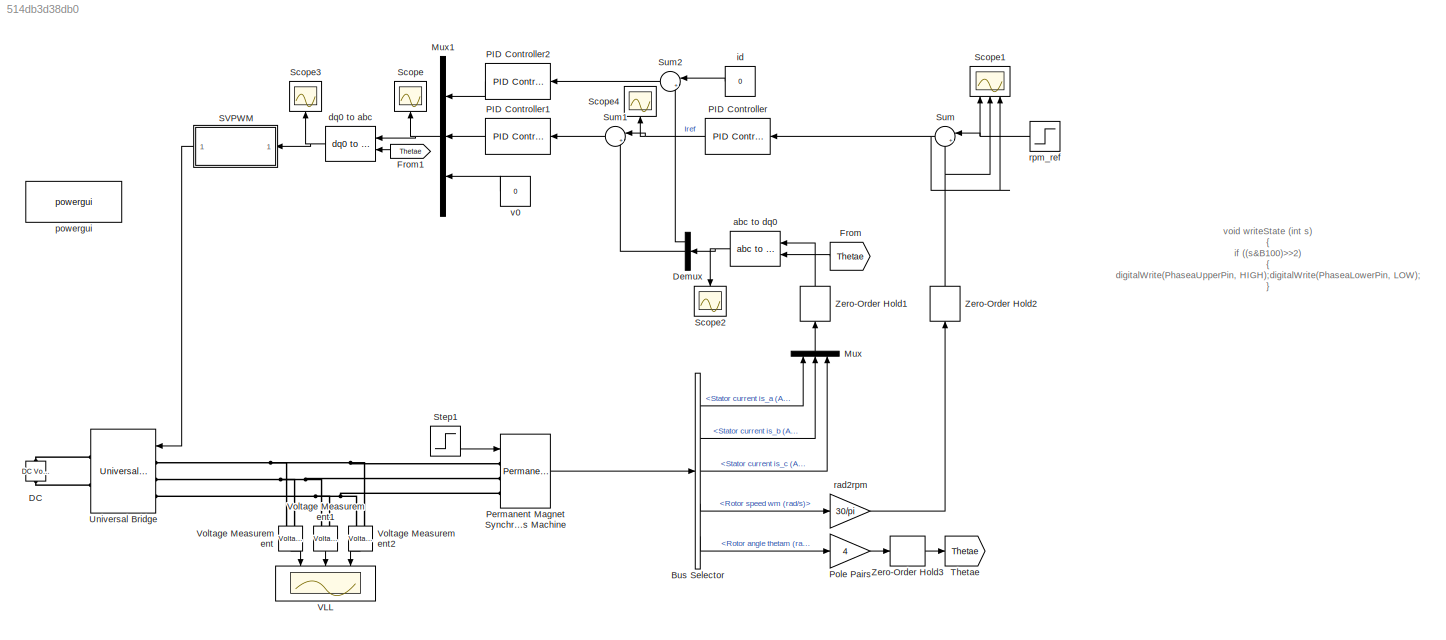
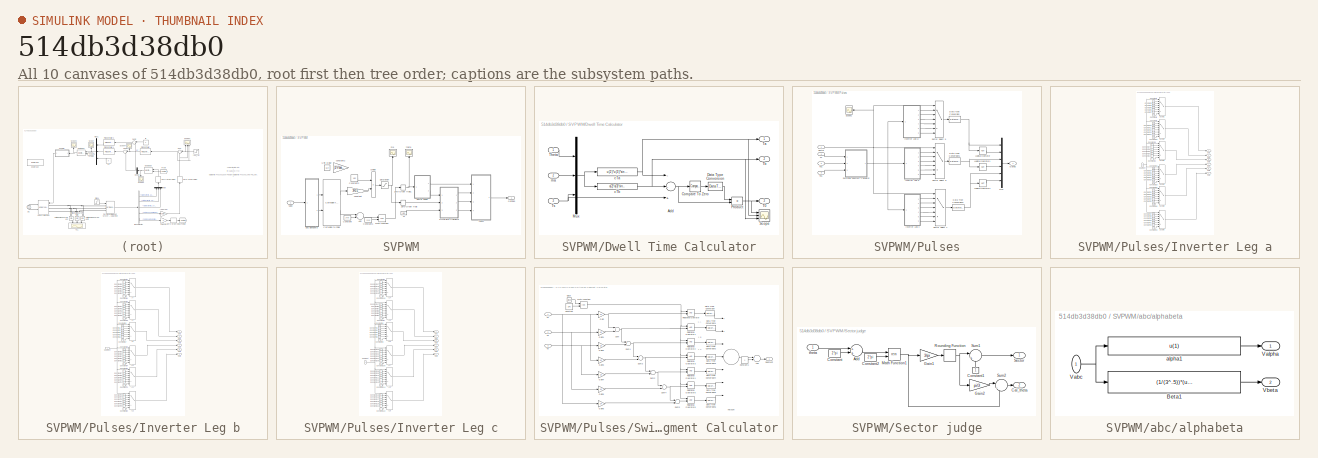
[diagram: thumbnail index - all 10 canvases of the model, root first then tree order]
MODEL slx_514db3d38db0
KIND model
BLOCK [BusSelector] Bus Selector
  OutputSignals = Stator current is_a (A),Stator current is_b (A),Stator current is_c (A),Rotor speed wm (rad/s),Rotor angle thetam (rad)
  Ports = [1, 5]
BLOCK [Reference] DC  REF=powerlib/Electrical
Sources/DC Voltage Source
  Amplitude = 48
  Measurements = None
  Ports = [0, 0, 0, 0, 0, 1, 1]
  SourceBlock = powerlib/Electrical\nSources/DC Voltage Source
  SourceType = DC Voltage Source
BLOCK [Demux] Demux
  DisplayOption = bar
  Outputs = 3
  Ports = [1, 3]
BLOCK [From] From
  GotoTag = Thetae
  TagVisibility = global
BLOCK [From] From1
  GotoTag = Thetae
  TagVisibility = global
BLOCK [Mux] Mux
  DisplayOption = bar
  Inputs = 3
  Ports = [3, 1]
BLOCK [Mux] Mux1
  DisplayOption = bar
  Inputs = 3
  Ports = [3, 1]
BLOCK [Reference] PID Controller  REF=simulink/Continuous/PID Controller
  AntiWindupMode = none
  Controller = PID
  D = 0
  DOutDataTypeStr = Inherit: Inherit via internal rule
  DOutMax = []
  DOutMin = []
  DParamDataTypeStr = Inherit: Inherit via internal rule
  DParamMax = []
  DParamMin = []
  ExternalReset = none
  FilterContinuousStateAttributes = ''
  FilterMethod = Forward Euler
  FilterOutDataTypeStr = Inherit: Inherit via internal rule
  FilterOutMax = []
  FilterOutMin = []
  FilterRTWStateStorageClass = Auto
  FilterStateMustResolveToSignalObject = off
  Form = Parallel
  I = 0.100
  IOutDataTypeStr = Inherit: Inherit via internal rule
  IOutMax = []
  IOutMin = []
  IParamDataTypeStr = Inherit: Inherit via internal rule
  IParamMax = []
  IParamMin = []
  IgnoreLimit = off
  InitialConditionForFilter = 0
  InitialConditionForIntegrator = 0
  InitialConditionSource = internal
  IntegratorContinuousStateAttributes = ''
  IntegratorMethod = Forward Euler
  IntegratorOutDataTypeStr = Inherit: Inherit via internal rule
  IntegratorOutMax = []
  IntegratorOutMin = []
  IntegratorRTWStateStorageClass = Auto
  IntegratorStateMustResolveToSignalObject = off
  Kb = 1
  KbOutDataTypeStr = Inherit: Inherit via internal rule
  KbOutMax = []
  KbOutMin = []
  KbParamDataTypeStr = Inherit: Inherit via internal rule
  KbParamMax = []
  KbParamMin = []
  Kt = 1
  KtOutDataTypeStr = Inherit: Inherit via internal rule
  KtOutMax = []
  KtOutMin = []
  KtParamDataTypeStr = Inherit: Inherit via internal rule
  KtParamMax = []
  KtParamMin = []
  LimitOutput = on
  LinearizeAsGain = on
  LockScale = off
  LowerSaturationLimit = -125
  N = 100
  NOutDataTypeStr = Inherit: Inherit via internal rule
  NOutMax = []
  NOutMin = []
  NParamDataTypeStr = Inherit: Inherit via internal rule
  NParamMax = []
  NParamMin = []
  P = 0.005
  POutDataTypeStr = Inherit: Inherit via internal rule
  POutMax = []
  POutMin = []
  PParamDataTypeStr = Inherit: Inherit via internal rule
  PParamMax = []
  PParamMin = []
  Ports = [1, 1]
  RndMeth = Floor
  SampleTime = 1
  SaturateOnIntegerOverflow = off
  SaturationOutDataTypeStr = Inherit: Same as input
  SaturationOutMax = []
  SaturationOutMin = []
  SourceBlock = simulink/Continuous/PID Controller
  SourceType = PID 1dof
  SumAccumDataTypeStr = Inherit: Inherit via internal rule
  SumDAccumDataTypeStr = Inherit: Inherit via internal rule
  SumDOutDataTypeStr = Inherit: Inherit via internal rule
  SumDOutMax = []
  SumDOutMin = []
  SumI1AccumDataTypeStr = Inherit: Inherit via internal rule
  SumI1OutDataTypeStr = Inherit: Inherit via internal rule
  SumI1OutMax = []
  SumI1OutMin = []
  SumI2AccumDataTypeStr = Inherit: Inherit via internal rule
  SumI2OutDataTypeStr = Inherit: Inherit via internal rule
  SumI2OutMax = []
  SumI2OutMin = []
  SumI3AccumDataTypeStr = Inherit: Inherit via internal rule
  SumI3OutDataTypeStr = Inherit: Inherit via internal rule
  SumI3OutMax = []
  SumI3OutMin = []
  SumOutDataTypeStr = Inherit: Inherit via internal rule
  SumOutMax = []
  SumOutMin = []
  TimeDomain = Continuous-time
  TrackingMode = off
  UpperSaturationLimit = 125
  ZeroCross = on
BLOCK [Reference] PID Controller1  REF=simulink/Continuous/PID Controller
  AntiWindupMode = none
  Controller = PID
  D = 0
  DOutDataTypeStr = Inherit: Inherit via internal rule
  DOutMax = []
  DOutMin = []
  DParamDataTypeStr = Inherit: Inherit via internal rule
  DParamMax = []
  DParamMin = []
  ExternalReset = none
  FilterContinuousStateAttributes = ''
  FilterMethod = Forward Euler
  FilterOutDataTypeStr = Inherit: Inherit via internal rule
  FilterOutMax = []
  FilterOutMin = []
  FilterRTWStateStorageClass = Auto
  FilterStateMustResolveToSignalObject = off
  Form = Parallel
  I = 1
  IOutDataTypeStr = Inherit: Inherit via internal rule
  IOutMax = []
  IOutMin = []
  IParamDataTypeStr = Inherit: Inherit via internal rule
  IParamMax = []
  IParamMin = []
  IgnoreLimit = off
  InitialConditionForFilter = 0
  InitialConditionForIntegrator = 0
  InitialConditionSource = internal
  IntegratorContinuousStateAttributes = ''
  IntegratorMethod = Forward Euler
  IntegratorOutDataTypeStr = Inherit: Inherit via internal rule
  IntegratorOutMax = []
  IntegratorOutMin = []
  IntegratorRTWStateStorageClass = Auto
  IntegratorStateMustResolveToSignalObject = off
  Kb = 1
  KbOutDataTypeStr = Inherit: Inherit via internal rule
  KbOutMax = []
  KbOutMin = []
  KbParamDataTypeStr = Inherit: Inherit via internal rule
  KbParamMax = []
  KbParamMin = []
  Kt = 1
  KtOutDataTypeStr = Inherit: Inherit via internal rule
  KtOutMax = []
  KtOutMin = []
  KtParamDataTypeStr = Inherit: Inherit via internal rule
  KtParamMax = []
  KtParamMin = []
  LimitOutput = on
  LinearizeAsGain = on
  LockScale = off
  LowerSaturationLimit = -48/2
  N = 100
  NOutDataTypeStr = Inherit: Inherit via internal rule
  NOutMax = []
  NOutMin = []
  NParamDataTypeStr = Inherit: Inherit via internal rule
  NParamMax = []
  NParamMin = []
  P = 0.5
  POutDataTypeStr = Inherit: Inherit via internal rule
  POutMax = []
  POutMin = []
  PParamDataTypeStr = Inherit: Inherit via internal rule
  PParamMax = []
  PParamMin = []
  Ports = [1, 1]
  RndMeth = Floor
  SampleTime = 1
  SaturateOnIntegerOverflow = off
  SaturationOutDataTypeStr = Inherit: Same as input
  SaturationOutMax = []
  SaturationOutMin = []
  SourceBlock = simulink/Continuous/PID Controller
  SourceType = PID 1dof
  SumAccumDataTypeStr = Inherit: Inherit via internal rule
  SumDAccumDataTypeStr = Inherit: Inherit via internal rule
  SumDOutDataTypeStr = Inherit: Inherit via internal rule
  SumDOutMax = []
  SumDOutMin = []
  SumI1AccumDataTypeStr = Inherit: Inherit via internal rule
  SumI1OutDataTypeStr = Inherit: Inherit via internal rule
  SumI1OutMax = []
  SumI1OutMin = []
  SumI2AccumDataTypeStr = Inherit: Inherit via internal rule
  SumI2OutDataTypeStr = Inherit: Inherit via internal rule
  SumI2OutMax = []
  SumI2OutMin = []
  SumI3AccumDataTypeStr = Inherit: Inherit via internal rule
  SumI3OutDataTypeStr = Inherit: Inherit via internal rule
  SumI3OutMax = []
  SumI3OutMin = []
  SumOutDataTypeStr = Inherit: Inherit via internal rule
  SumOutMax = []
  SumOutMin = []
  TimeDomain = Continuous-time
  TrackingMode = off
  UpperSaturationLimit = 48/2
  ZeroCross = on
BLOCK [Reference] PID Controller2  REF=simulink/Continuous/PID Controller
  AntiWindupMode = none
  Controller = PID
  D = 0
  DOutDataTypeStr = Inherit: Inherit via internal rule
  DOutMax = []
  DOutMin = []
  DParamDataTypeStr = Inherit: Inherit via internal rule
  DParamMax = []
  DParamMin = []
  ExternalReset = none
  FilterContinuousStateAttributes = ''
  FilterMethod = Forward Euler
  FilterOutDataTypeStr = Inherit: Inherit via internal rule
  FilterOutMax = []
  FilterOutMin = []
  FilterRTWStateStorageClass = Auto
  FilterStateMustResolveToSignalObject = off
  Form = Parallel
  I = 1
  IOutDataTypeStr = Inherit: Inherit via internal rule
  IOutMax = []
  IOutMin = []
  IParamDataTypeStr = Inherit: Inherit via internal rule
  IParamMax = []
  IParamMin = []
  IgnoreLimit = off
  InitialConditionForFilter = 0
  InitialConditionForIntegrator = 0
  InitialConditionSource = internal
  IntegratorContinuousStateAttributes = ''
  IntegratorMethod = Forward Euler
  IntegratorOutDataTypeStr = Inherit: Inherit via internal rule
  IntegratorOutMax = []
  IntegratorOutMin = []
  IntegratorRTWStateStorageClass = Auto
  IntegratorStateMustResolveToSignalObject = off
  Kb = 1
  KbOutDataTypeStr = Inherit: Inherit via internal rule
  KbOutMax = []
  KbOutMin = []
  KbParamDataTypeStr = Inherit: Inherit via internal rule
  KbParamMax = []
  KbParamMin = []
  Kt = 1
  KtOutDataTypeStr = Inherit: Inherit via internal rule
  KtOutMax = []
  KtOutMin = []
  KtParamDataTypeStr = Inherit: Inherit via internal rule
  KtParamMax = []
  KtParamMin = []
  LimitOutput = on
  LinearizeAsGain = on
  LockScale = off
  LowerSaturationLimit = -48/2
  N = 100
  NOutDataTypeStr = Inherit: Inherit via internal rule
  NOutMax = []
  NOutMin = []
  NParamDataTypeStr = Inherit: Inherit via internal rule
  NParamMax = []
  NParamMin = []
  P = 0.5
  POutDataTypeStr = Inherit: Inherit via internal rule
  POutMax = []
  POutMin = []
  PParamDataTypeStr = Inherit: Inherit via internal rule
  PParamMax = []
  PParamMin = []
  Ports = [1, 1]
  RndMeth = Floor
  SampleTime = 1
  SaturateOnIntegerOverflow = off
  SaturationOutDataTypeStr = Inherit: Same as input
  SaturationOutMax = []
  SaturationOutMin = []
  SourceBlock = simulink/Continuous/PID Controller
  SourceType = PID 1dof
  SumAccumDataTypeStr = Inherit: Inherit via internal rule
  SumDAccumDataTypeStr = Inherit: Inherit via internal rule
  SumDOutDataTypeStr = Inherit: Inherit via internal rule
  SumDOutMax = []
  SumDOutMin = []
  SumI1AccumDataTypeStr = Inherit: Inherit via internal rule
  SumI1OutDataTypeStr = Inherit: Inherit via internal rule
  SumI1OutMax = []
  SumI1OutMin = []
  SumI2AccumDataTypeStr = Inherit: Inherit via internal rule
  SumI2OutDataTypeStr = Inherit: Inherit via internal rule
  SumI2OutMax = []
  SumI2OutMin = []
  SumI3AccumDataTypeStr = Inherit: Inherit via internal rule
  SumI3OutDataTypeStr = Inherit: Inherit via internal rule
  SumI3OutMax = []
  SumI3OutMin = []
  SumOutDataTypeStr = Inherit: Inherit via internal rule
  SumOutMax = []
  SumOutMin = []
  TimeDomain = Continuous-time
  TrackingMode = off
  UpperSaturationLimit = 48/2
  ZeroCross = on
BLOCK [Reference] Permanent Magnet Synchronous Machine  REF=powerlib/Machines/Permanent Magnet
Synchronous Machine
  Flat = 120
  Flux = 0.0125
  FluxDistribution = Trapezoidal
  Inductance = 1e-4
  InitialConditions = [0,0, 0,0]
  InitialConditions5ph = [0 0 0 0 0 0]
  La = 0.000835
  MachineConstant = Torque Constant (N.m / A_peak)
  Mechanical = [1e-3 1e-3 4 0]
  MechanicalLoad = Torque Tm
  NbPhases = 3
  PolePairs = 4
  Ports = [1, 1, 0, 0, 0, 3]
  PresetModel = No
  RefAngle = Aligned with phase A axis (original Park)
  Resistance = 0.01
  RotorType = Round
  ShowDetailedParameters = on
  SourceBlock = powerlib/Machines/Permanent Magnet\nSynchronous Machine
  SourceType = Permanent Magnet Synchronous Machine
  TorqueCst = 0.1
  TsBlock = -1
  TsPowergui = 0
  VoltageCst = 10.472
  dqInductances = [8.5e-3,8.5e-3]
BLOCK [Gain] Pole Pairs
  Gain = 4
  OutDataTypeStr = Inherit: Inherit via internal rule
  ParamDataTypeStr = Inherit: Inherit via internal rule
  SaturateOnIntegerOverflow = off
BLOCK [SubSystem] SVPWM
  FunctionWithSeparateData = off
  MaskHideContents = off
  MinAlgLoopOccurrences = off
  Opaque = off
  Ports = [1, 1]
  PropExecContextOutsideSubsystem = off
  RTWSystemCode = Auto
  RequestExecContextInheritance = off
BLOCK [Sum] SVPWM/Add
  InputSameDT = off
  OutDataTypeStr = Inherit: Inherit via internal rule
  Ports = [2, 1]
  SaturateOnIntegerOverflow = off
BLOCK [Reference] SVPWM/Cartesian to Polar  REF=simulink_extras/Transformations/Cartesian to
Polar
  Ports = [2, 2]
  SourceBlock = simulink_extras/Transformations/Cartesian to\nPolar
  SourceType = Cart2Polar
BLOCK [Constant] SVPWM/Constant
  Value = 2*pi
BLOCK [Constant] SVPWM/Constant1
  Value = 2*pi
BLOCK [Constant] SVPWM/Constant2
  Value = Vdc
BLOCK [Product] SVPWM/Divide
  InputSameDT = off
  Inputs = /*
  OutDataTypeStr = Inherit: Inherit via internal rule
  Ports = [2, 1]
  RndMeth = Floor
  SaturateOnIntegerOverflow = off
BLOCK [SubSystem] SVPWM/Dwell Time Calculator
  FunctionWithSeparateData = off
  MaskHideContents = off
  MinAlgLoopOccurrences = off
  Opaque = off
  Ports = [3, 3]
  PropExecContextOutsideSubsystem = off
  RTWSystemCode = Auto
  RequestExecContextInheritance = off
BLOCK [Sum] SVPWM/Dwell Time Calculator/Add
  InputSameDT = off
  Inputs = --+
  OutDataTypeStr = Inherit: Inherit via internal rule
  Ports = [3, 1]
  SaturateOnIntegerOverflow = off
BLOCK [Reference] SVPWM/Dwell Time Calculator/Compare To Zero  REF=simulink/Logic and Bit
Operations/Compare
To Zero
  OutDataTypeStr = boolean
  Ports = [1, 1]
  SourceBlock = simulink/Logic and Bit\nOperations/Compare\nTo Zero
  SourceType = Compare To Zero
  ZeroCross = on
  relop = >=
BLOCK [DataTypeConversion] SVPWM/Dwell Time Calculator/Data Type Conversion
  OutDataTypeStr = double
  RndMeth = Floor
  SaturateOnIntegerOverflow = off
BLOCK [Mux] SVPWM/Dwell Time Calculator/Mux
  DisplayOption = bar
  Inputs = 3
  Ports = [3, 1]
BLOCK [Product] SVPWM/Dwell Time Calculator/Product
  InputSameDT = off
  OutDataTypeStr = Inherit: Inherit via internal rule
  Ports = [2, 1]
  SaturateOnIntegerOverflow = off
BLOCK [Scope] SVPWM/Dwell Time Calculator/Scope
  DataFormat = StructureWithTime
  Floating = off
  LimitDataPoints = off
  NumInputPorts = 3
  Ports = [3]
  SampleTime = 0
  SaveName = ScopeData12
  ShowLegends = off
  YMax = 5~5~5
  YMin = -5~-5~-5
BLOCK [Outport] SVPWM/Dwell Time Calculator/T0
  IconDisplay = Port number
  Port = 3
BLOCK [Outport] SVPWM/Dwell Time Calculator/Ta
  IconDisplay = Port number
BLOCK [Outport] SVPWM/Dwell Time Calculator/Tb
  IconDisplay = Port number
  Port = 2
BLOCK [Inport] SVPWM/Dwell Time Calculator/Theta
  IconDisplay = Port number
BLOCK [Inport] SVPWM/Dwell Time Calculator/Ts
  IconDisplay = Port number
  Port = 3
BLOCK [Fcn] SVPWM/Dwell Time Calculator/cTa
  Expr = u(2)*u(3)*sin((pi/3)-u(1))
BLOCK [Fcn] SVPWM/Dwell Time Calculator/cTb
  Expr = u(2)*u(3)*sin(u(1))
BLOCK [Inport] SVPWM/Dwell Time Calculator/ma
  IconDisplay = Port number
  Port = 2
BLOCK [Outport] SVPWM/Gatings
  IconDisplay = Port number
BLOCK [Math] SVPWM/Math Function
  Operator = rem
  Ports = [2, 1]
BLOCK [SubSystem] SVPWM/Pulses
  FunctionWithSeparateData = off
  MaskHideContents = off
  MinAlgLoopOccurrences = off
  Opaque = off
  Ports = [4, 1]
  PropExecContextOutsideSubsystem = off
  RTWSystemCode = Auto
  RequestExecContextInheritance = off
BLOCK [DataTypeConversion] SVPWM/Pulses/Data Type Conversion
  OutDataTypeStr = boolean
BLOCK [DataTypeConversion] SVPWM/Pulses/Data Type Conversion1
  OutDataTypeStr = boolean
BLOCK [DataTypeConversion] SVPWM/Pulses/Data Type Conversion2
  OutDataTypeStr = boolean
BLOCK [Outport] SVPWM/Pulses/Gating
  IconDisplay = Port number
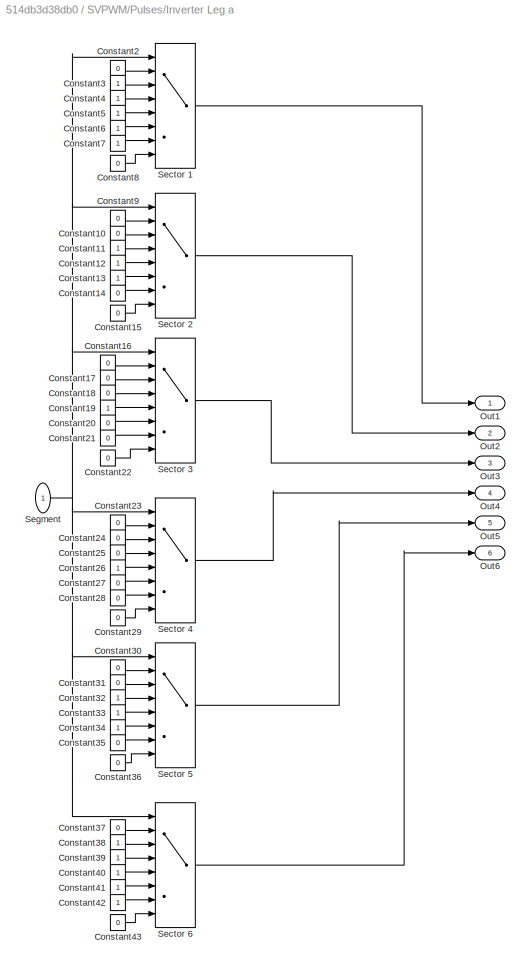
BLOCK [SubSystem] SVPWM/Pulses/Inverter Leg a
  FunctionWithSeparateData = off
  MaskHideContents = off
  MinAlgLoopOccurrences = off
  Opaque = off
  Ports = [1, 6]
  PropExecContextOutsideSubsystem = off
  RTWSystemCode = Auto
  RequestExecContextInheritance = off
BLOCK [Constant] SVPWM/Pulses/Inverter Leg a/Constant10
  Value = 0
BLOCK [Constant] SVPWM/Pulses/Inverter Leg a/Constant11
BLOCK [Constant] SVPWM/Pulses/Inverter Leg a/Constant12
BLOCK [Constant] SVPWM/Pulses/Inverter Leg a/Constant13
BLOCK [Constant] SVPWM/Pulses/Inverter Leg a/Constant14
  Value = 0
BLOCK [Constant] SVPWM/Pulses/Inverter Leg a/Constant15
  Value = 0
BLOCK [Constant] SVPWM/Pulses/Inverter Leg a/Constant16
  Value = 0
BLOCK [Constant] SVPWM/Pulses/Inverter Leg a/Constant17
  Value = 0
BLOCK [Constant] SVPWM/Pulses/Inverter Leg a/Constant18
  Value = 0
BLOCK [Constant] SVPWM/Pulses/Inverter Leg a/Constant19
BLOCK [Constant] SVPWM/Pulses/Inverter Leg a/Constant2
  Value = 0
BLOCK [Constant] SVPWM/Pulses/Inverter Leg a/Constant20
  Value = 0
BLOCK [Constant] SVPWM/Pulses/Inverter Leg a/Constant21
  Value = 0
BLOCK [Constant] SVPWM/Pulses/Inverter Leg a/Constant22
  Value = 0
BLOCK [Constant] SVPWM/Pulses/Inverter Leg a/Constant23
  Value = 0
BLOCK [Constant] SVPWM/Pulses/Inverter Leg a/Constant24
  Value = 0
BLOCK [Constant] SVPWM/Pulses/Inverter Leg a/Constant25
  Value = 0
BLOCK [Constant] SVPWM/Pulses/Inverter Leg a/Constant26
BLOCK [Constant] SVPWM/Pulses/Inverter Leg a/Constant27
  Value = 0
BLOCK [Constant] SVPWM/Pulses/Inverter Leg a/Constant28
  Value = 0
BLOCK [Constant] SVPWM/Pulses/Inverter Leg a/Constant29
  Value = 0
BLOCK [Constant] SVPWM/Pulses/Inverter Leg a/Constant3
BLOCK [Constant] SVPWM/Pulses/Inverter Leg a/Constant30
  Value = 0
BLOCK [Constant] SVPWM/Pulses/Inverter Leg a/Constant31
  Value = 0
BLOCK [Constant] SVPWM/Pulses/Inverter Leg a/Constant32
BLOCK [Constant] SVPWM/Pulses/Inverter Leg a/Constant33
BLOCK [Constant] SVPWM/Pulses/Inverter Leg a/Constant34
BLOCK [Constant] SVPWM/Pulses/Inverter Leg a/Constant35
  Value = 0
BLOCK [Constant] SVPWM/Pulses/Inverter Leg a/Constant36
  Value = 0
BLOCK [Constant] SVPWM/Pulses/Inverter Leg a/Constant37
  Value = 0
BLOCK [Constant] SVPWM/Pulses/Inverter Leg a/Constant38
BLOCK [Constant] SVPWM/Pulses/Inverter Leg a/Constant39
BLOCK [Constant] SVPWM/Pulses/Inverter Leg a/Constant4
BLOCK [Constant] SVPWM/Pulses/Inverter Leg a/Constant40
BLOCK [Constant] SVPWM/Pulses/Inverter Leg a/Constant41
BLOCK [Constant] SVPWM/Pulses/Inverter Leg a/Constant42
BLOCK [Constant] SVPWM/Pulses/Inverter Leg a/Constant43
  Value = 0
BLOCK [Constant] SVPWM/Pulses/Inverter Leg a/Constant5
BLOCK [Constant] SVPWM/Pulses/Inverter Leg a/Constant6
BLOCK [Constant] SVPWM/Pulses/Inverter Leg a/Constant7
BLOCK [Constant] SVPWM/Pulses/Inverter Leg a/Constant8
  Value = 0
BLOCK [Constant] SVPWM/Pulses/Inverter Leg a/Constant9
  Value = 0
BLOCK [Outport] SVPWM/Pulses/Inverter Leg a/Out1
  IconDisplay = Port number
BLOCK [Outport] SVPWM/Pulses/Inverter Leg a/Out2
  IconDisplay = Port number
  Port = 2
BLOCK [Outport] SVPWM/Pulses/Inverter Leg a/Out3
  IconDisplay = Port number
  Port = 3
BLOCK [Outport] SVPWM/Pulses/Inverter Leg a/Out4
  IconDisplay = Port number
  Port = 4
BLOCK [Outport] SVPWM/Pulses/Inverter Leg a/Out5
  IconDisplay = Port number
  Port = 5
BLOCK [Outport] SVPWM/Pulses/Inverter Leg a/Out6
  IconDisplay = Port number
  Port = 6
BLOCK [MultiPortSwitch] SVPWM/Pulses/Inverter Leg a/Sector 1
  InputSameDT = off
  Inputs = 7
  Ports = [8, 1]
  SaturateOnIntegerOverflow = off
BLOCK [MultiPortSwitch] SVPWM/Pulses/Inverter Leg a/Sector 2
  InputSameDT = off
  Inputs = 7
  Ports = [8, 1]
  SaturateOnIntegerOverflow = off
BLOCK [MultiPortSwitch] SVPWM/Pulses/Inverter Leg a/Sector 3
  InputSameDT = off
  Inputs = 7
  Ports = [8, 1]
  SaturateOnIntegerOverflow = off
BLOCK [MultiPortSwitch] SVPWM/Pulses/Inverter Leg a/Sector 4
  InputSameDT = off
  Inputs = 7
  Ports = [8, 1]
  SaturateOnIntegerOverflow = off
BLOCK [MultiPortSwitch] SVPWM/Pulses/Inverter Leg a/Sector 5
  InputSameDT = off
  Inputs = 7
  Ports = [8, 1]
  SaturateOnIntegerOverflow = off
BLOCK [MultiPortSwitch] SVPWM/Pulses/Inverter Leg a/Sector 6
  InputSameDT = off
  Inputs = 7
  Ports = [8, 1]
  SaturateOnIntegerOverflow = off
BLOCK [Inport] SVPWM/Pulses/Inverter Leg a/Segment
  IconDisplay = Port number
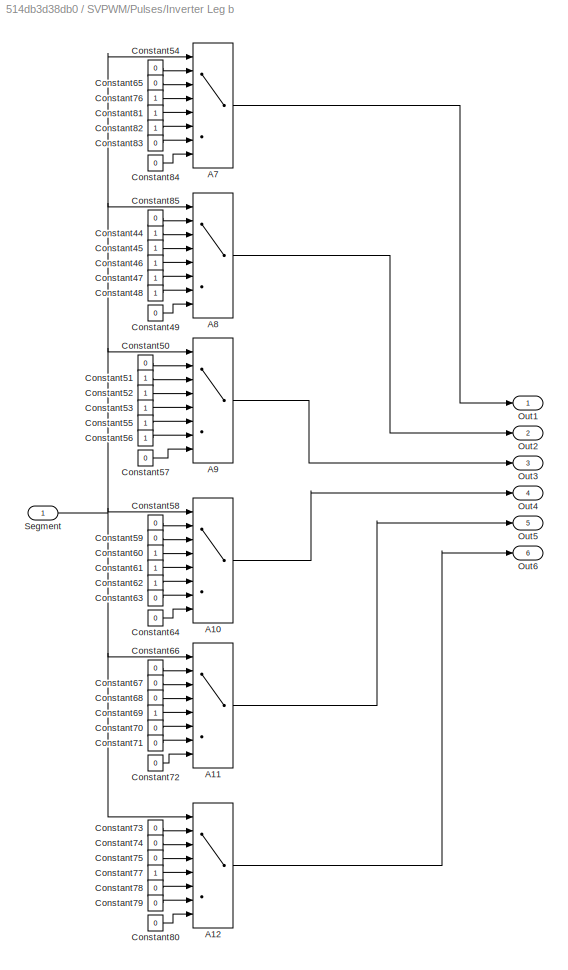
BLOCK [SubSystem] SVPWM/Pulses/Inverter Leg b
  FunctionWithSeparateData = off
  MaskHideContents = off
  MinAlgLoopOccurrences = off
  Opaque = off
  Ports = [1, 6]
  PropExecContextOutsideSubsystem = off
  RTWSystemCode = Auto
  RequestExecContextInheritance = off
BLOCK [MultiPortSwitch] SVPWM/Pulses/Inverter Leg b/A10
  InputSameDT = off
  Inputs = 7
  Ports = [8, 1]
  SaturateOnIntegerOverflow = off
BLOCK [MultiPortSwitch] SVPWM/Pulses/Inverter Leg b/A11
  InputSameDT = off
  Inputs = 7
  Ports = [8, 1]
  SaturateOnIntegerOverflow = off
BLOCK [MultiPortSwitch] SVPWM/Pulses/Inverter Leg b/A12
  InputSameDT = off
  Inputs = 7
  Ports = [8, 1]
  SaturateOnIntegerOverflow = off
BLOCK [MultiPortSwitch] SVPWM/Pulses/Inverter Leg b/A7
  InputSameDT = off
  Inputs = 7
  Ports = [8, 1]
  SaturateOnIntegerOverflow = off
BLOCK [MultiPortSwitch] SVPWM/Pulses/Inverter Leg b/A8
  InputSameDT = off
  Inputs = 7
  Ports = [8, 1]
  SaturateOnIntegerOverflow = off
BLOCK [MultiPortSwitch] SVPWM/Pulses/Inverter Leg b/A9
  InputSameDT = off
  Inputs = 7
  Ports = [8, 1]
  SaturateOnIntegerOverflow = off
BLOCK [Constant] SVPWM/Pulses/Inverter Leg b/Constant44
BLOCK [Constant] SVPWM/Pulses/Inverter Leg b/Constant45
BLOCK [Constant] SVPWM/Pulses/Inverter Leg b/Constant46
BLOCK [Constant] SVPWM/Pulses/Inverter Leg b/Constant47
BLOCK [Constant] SVPWM/Pulses/Inverter Leg b/Constant48
BLOCK [Constant] SVPWM/Pulses/Inverter Leg b/Constant49
  Value = 0
BLOCK [Constant] SVPWM/Pulses/Inverter Leg b/Constant50
  Value = 0
BLOCK [Constant] SVPWM/Pulses/Inverter Leg b/Constant51
BLOCK [Constant] SVPWM/Pulses/Inverter Leg b/Constant52
BLOCK [Constant] SVPWM/Pulses/Inverter Leg b/Constant53
BLOCK [Constant] SVPWM/Pulses/Inverter Leg b/Constant54
  Value = 0
BLOCK [Constant] SVPWM/Pulses/Inverter Leg b/Constant55
BLOCK [Constant] SVPWM/Pulses/Inverter Leg b/Constant56
BLOCK [Constant] SVPWM/Pulses/Inverter Leg b/Constant57
  Value = 0
BLOCK [Constant] SVPWM/Pulses/Inverter Leg b/Constant58
  Value = 0
BLOCK [Constant] SVPWM/Pulses/Inverter Leg b/Constant59
  Value = 0
BLOCK [Constant] SVPWM/Pulses/Inverter Leg b/Constant60
BLOCK [Constant] SVPWM/Pulses/Inverter Leg b/Constant61
BLOCK [Constant] SVPWM/Pulses/Inverter Leg b/Constant62
BLOCK [Constant] SVPWM/Pulses/Inverter Leg b/Constant63
  Value = 0
BLOCK [Constant] SVPWM/Pulses/Inverter Leg b/Constant64
  Value = 0
BLOCK [Constant] SVPWM/Pulses/Inverter Leg b/Constant65
  Value = 0
BLOCK [Constant] SVPWM/Pulses/Inverter Leg b/Constant66
  Value = 0
BLOCK [Constant] SVPWM/Pulses/Inverter Leg b/Constant67
  Value = 0
BLOCK [Constant] SVPWM/Pulses/Inverter Leg b/Constant68
  Value = 0
BLOCK [Constant] SVPWM/Pulses/Inverter Leg b/Constant69
BLOCK [Constant] SVPWM/Pulses/Inverter Leg b/Constant70
  Value = 0
BLOCK [Constant] SVPWM/Pulses/Inverter Leg b/Constant71
  Value = 0
BLOCK [Constant] SVPWM/Pulses/Inverter Leg b/Constant72
  Value = 0
BLOCK [Constant] SVPWM/Pulses/Inverter Leg b/Constant73
  Value = 0
BLOCK [Constant] SVPWM/Pulses/Inverter Leg b/Constant74
  Value = 0
BLOCK [Constant] SVPWM/Pulses/Inverter Leg b/Constant75
  Value = 0
BLOCK [Constant] SVPWM/Pulses/Inverter Leg b/Constant76
BLOCK [Constant] SVPWM/Pulses/Inverter Leg b/Constant77
BLOCK [Constant] SVPWM/Pulses/Inverter Leg b/Constant78
  Value = 0
BLOCK [Constant] SVPWM/Pulses/Inverter Leg b/Constant79
  Value = 0
BLOCK [Constant] SVPWM/Pulses/Inverter Leg b/Constant80
  Value = 0
BLOCK [Constant] SVPWM/Pulses/Inverter Leg b/Constant81
BLOCK [Constant] SVPWM/Pulses/Inverter Leg b/Constant82
BLOCK [Constant] SVPWM/Pulses/Inverter Leg b/Constant83
  Value = 0
BLOCK [Constant] SVPWM/Pulses/Inverter Leg b/Constant84
  Value = 0
BLOCK [Constant] SVPWM/Pulses/Inverter Leg b/Constant85
  Value = 0
BLOCK [Outport] SVPWM/Pulses/Inverter Leg b/Out1
  IconDisplay = Port number
BLOCK [Outport] SVPWM/Pulses/Inverter Leg b/Out2
  IconDisplay = Port number
  Port = 2
BLOCK [Outport] SVPWM/Pulses/Inverter Leg b/Out3
  IconDisplay = Port number
  Port = 3
BLOCK [Outport] SVPWM/Pulses/Inverter Leg b/Out4
  IconDisplay = Port number
  Port = 4
BLOCK [Outport] SVPWM/Pulses/Inverter Leg b/Out5
  IconDisplay = Port number
  Port = 5
BLOCK [Outport] SVPWM/Pulses/Inverter Leg b/Out6
  IconDisplay = Port number
  Port = 6
BLOCK [Inport] SVPWM/Pulses/Inverter Leg b/Segment
  IconDisplay = Port number
BLOCK [SubSystem] SVPWM/Pulses/Inverter Leg c
  FunctionWithSeparateData = off
  MaskHideContents = off
  MinAlgLoopOccurrences = off
  Opaque = off
  Ports = [1, 6]
  PropExecContextOutsideSubsystem = off
  RTWSystemCode = Auto
  RequestExecContextInheritance = off
BLOCK [MultiPortSwitch] SVPWM/Pulses/Inverter Leg c/A14
  InputSameDT = off
  Inputs = 7
  Ports = [8, 1]
  SaturateOnIntegerOverflow = off
BLOCK [MultiPortSwitch] SVPWM/Pulses/Inverter Leg c/A15
  InputSameDT = off
  Inputs = 7
  Ports = [8, 1]
  SaturateOnIntegerOverflow = off
BLOCK [MultiPortSwitch] SVPWM/Pulses/Inverter Leg c/A16
  InputSameDT = off
  Inputs = 7
  Ports = [8, 1]
  SaturateOnIntegerOverflow = off
BLOCK [MultiPortSwitch] SVPWM/Pulses/Inverter Leg c/A17
  InputSameDT = off
  Inputs = 7
  Ports = [8, 1]
  SaturateOnIntegerOverflow = off
BLOCK [MultiPortSwitch] SVPWM/Pulses/Inverter Leg c/A18
  InputSameDT = off
  Inputs = 7
  Ports = [8, 1]
  SaturateOnIntegerOverflow = off
BLOCK [MultiPortSwitch] SVPWM/Pulses/Inverter Leg c/A19
  InputSameDT = off
  Inputs = 7
  Ports = [8, 1]
  SaturateOnIntegerOverflow = off
BLOCK [Constant] SVPWM/Pulses/Inverter Leg c/Constant100
  Value = 0
BLOCK [Constant] SVPWM/Pulses/Inverter Leg c/Constant101
BLOCK [Constant] SVPWM/Pulses/Inverter Leg c/Constant102
BLOCK [Constant] SVPWM/Pulses/Inverter Leg c/Constant103
BLOCK [Constant] SVPWM/Pulses/Inverter Leg c/Constant104
BLOCK [Constant] SVPWM/Pulses/Inverter Leg c/Constant105
BLOCK [Constant] SVPWM/Pulses/Inverter Leg c/Constant106
  Value = 0
BLOCK [Constant] SVPWM/Pulses/Inverter Leg c/Constant107
  Value = 0
BLOCK [Constant] SVPWM/Pulses/Inverter Leg c/Constant108
  Value = 0
BLOCK [Constant] SVPWM/Pulses/Inverter Leg c/Constant109
BLOCK [Constant] SVPWM/Pulses/Inverter Leg c/Constant110
BLOCK [Constant] SVPWM/Pulses/Inverter Leg c/Constant111
BLOCK [Constant] SVPWM/Pulses/Inverter Leg c/Constant112
BLOCK [Constant] SVPWM/Pulses/Inverter Leg c/Constant113
BLOCK [Constant] SVPWM/Pulses/Inverter Leg c/Constant114
  Value = 0
BLOCK [Constant] SVPWM/Pulses/Inverter Leg c/Constant115
  Value = 0
BLOCK [Constant] SVPWM/Pulses/Inverter Leg c/Constant116
  Value = 0
BLOCK [Constant] SVPWM/Pulses/Inverter Leg c/Constant117
BLOCK [Constant] SVPWM/Pulses/Inverter Leg c/Constant118
  Value = 0
BLOCK [Constant] SVPWM/Pulses/Inverter Leg c/Constant119
BLOCK [Constant] SVPWM/Pulses/Inverter Leg c/Constant120
BLOCK [Constant] SVPWM/Pulses/Inverter Leg c/Constant121
  Value = 0
BLOCK [Constant] SVPWM/Pulses/Inverter Leg c/Constant122
  Value = 0
BLOCK [Constant] SVPWM/Pulses/Inverter Leg c/Constant123
BLOCK [Constant] SVPWM/Pulses/Inverter Leg c/Constant124
  Value = 0
BLOCK [Constant] SVPWM/Pulses/Inverter Leg c/Constant125
  Value = 0
BLOCK [Constant] SVPWM/Pulses/Inverter Leg c/Constant126
  Value = 0
BLOCK [Constant] SVPWM/Pulses/Inverter Leg c/Constant127
  Value = 0
BLOCK [Constant] SVPWM/Pulses/Inverter Leg c/Constant86
  Value = 0
BLOCK [Constant] SVPWM/Pulses/Inverter Leg c/Constant87
  Value = 0
BLOCK [Constant] SVPWM/Pulses/Inverter Leg c/Constant88
BLOCK [Constant] SVPWM/Pulses/Inverter Leg c/Constant89
  Value = 0
BLOCK [Constant] SVPWM/Pulses/Inverter Leg c/Constant90
  Value = 0
BLOCK [Constant] SVPWM/Pulses/Inverter Leg c/Constant91
  Value = 0
BLOCK [Constant] SVPWM/Pulses/Inverter Leg c/Constant92
  Value = 0
BLOCK [Constant] SVPWM/Pulses/Inverter Leg c/Constant93
  Value = 0
BLOCK [Constant] SVPWM/Pulses/Inverter Leg c/Constant94
BLOCK [Constant] SVPWM/Pulses/Inverter Leg c/Constant95
BLOCK [Constant] SVPWM/Pulses/Inverter Leg c/Constant96
  Value = 0
BLOCK [Constant] SVPWM/Pulses/Inverter Leg c/Constant97
BLOCK [Constant] SVPWM/Pulses/Inverter Leg c/Constant98
  Value = 0
BLOCK [Constant] SVPWM/Pulses/Inverter Leg c/Constant99
  Value = 0
BLOCK [Outport] SVPWM/Pulses/Inverter Leg c/Out1
  IconDisplay = Port number
BLOCK [Outport] SVPWM/Pulses/Inverter Leg c/Out2
  IconDisplay = Port number
  Port = 2
BLOCK [Outport] SVPWM/Pulses/Inverter Leg c/Out3
  IconDisplay = Port number
  Port = 3
BLOCK [Outport] SVPWM/Pulses/Inverter Leg c/Out4
  IconDisplay = Port number
  Port = 4
BLOCK [Outport] SVPWM/Pulses/Inverter Leg c/Out5
  IconDisplay = Port number
  Port = 5
BLOCK [Outport] SVPWM/Pulses/Inverter Leg c/Out6
  IconDisplay = Port number
  Port = 6
BLOCK [Inport] SVPWM/Pulses/Inverter Leg c/Segment
  IconDisplay = Port number
BLOCK [Logic] SVPWM/Pulses/Logical Operator
  AllPortsSameDT = off
  Operator = NOT
  Ports = [1, 1]
BLOCK [Logic] SVPWM/Pulses/Logical Operator1
  AllPortsSameDT = off
  Operator = NOT
  Ports = [1, 1]
BLOCK [Logic] SVPWM/Pulses/Logical Operator2
  AllPortsSameDT = off
  Operator = NOT
  Ports = [1, 1]
BLOCK [Mux] SVPWM/Pulses/Mux
  DisplayOption = bar
  Inputs = 6
  Ports = [6, 1]
BLOCK [Scope] SVPWM/Pulses/Scope1
  Floating = off
  LimitDataPoints = off
  NumInputPorts = 1
  Ports = [1]
  SaveName = ScopeData2
  ShowLegends = off
BLOCK [Inport] SVPWM/Pulses/Sector
  IconDisplay = Port number
BLOCK [MultiPortSwitch] SVPWM/Pulses/Sector Select a
  InputSameDT = off
  Inputs = 6
  Ports = [7, 1]
  SaturateOnIntegerOverflow = off
BLOCK [MultiPortSwitch] SVPWM/Pulses/Sector Select b
  InputSameDT = off
  Inputs = 6
  Ports = [7, 1]
  SaturateOnIntegerOverflow = off
BLOCK [MultiPortSwitch] SVPWM/Pulses/Sector Select c
  InputSameDT = off
  Inputs = 6
  Ports = [7, 1]
  SaturateOnIntegerOverflow = off
BLOCK [SubSystem] SVPWM/Pulses/Switching Segment Calculator
  FunctionWithSeparateData = off
  MaskHideContents = off
  MinAlgLoopOccurrences = off
  Opaque = off
  Ports = [3, 1]
  PropExecContextOutsideSubsystem = off
  RTWSystemCode = Auto
  RequestExecContextInheritance = off
BLOCK [Sum] SVPWM/Pulses/Switching Segment Calculator/Add
  InputSameDT = off
  OutDataTypeStr = Inherit: Inherit via internal rule
  Ports = [2, 1]
  SaturateOnIntegerOverflow = off
BLOCK [Clock] SVPWM/Pulses/Switching Segment Calculator/Clock
BLOCK [Constant] SVPWM/Pulses/Switching Segment Calculator/Constant
  Value = 1/Fs
BLOCK [Constant] SVPWM/Pulses/Switching Segment Calculator/Constant1
BLOCK [DataTypeConversion] SVPWM/Pulses/Switching Segment Calculator/Data Type Conversion
  OutDataTypeStr = double
  RndMeth = Floor
  SaturateOnIntegerOverflow = off
BLOCK [DataTypeConversion] SVPWM/Pulses/Switching Segment Calculator/Data Type Conversion1
  OutDataTypeStr = double
  RndMeth = Floor
  SaturateOnIntegerOverflow = off
BLOCK [DataTypeConversion] SVPWM/Pulses/Switching Segment Calculator/Data Type Conversion2
  OutDataTypeStr = double
  RndMeth = Floor
  SaturateOnIntegerOverflow = off
BLOCK [DataTypeConversion] SVPWM/Pulses/Switching Segment Calculator/Data Type Conversion3
  OutDataTypeStr = double
  RndMeth = Floor
  SaturateOnIntegerOverflow = off
BLOCK [DataTypeConversion] SVPWM/Pulses/Switching Segment Calculator/Data Type Conversion4
  OutDataTypeStr = double
  RndMeth = Floor
  SaturateOnIntegerOverflow = off
BLOCK [DataTypeConversion] SVPWM/Pulses/Switching Segment Calculator/Data Type Conversion5
  OutDataTypeStr = double
  RndMeth = Floor
  SaturateOnIntegerOverflow = off
BLOCK [DataTypeConversion] SVPWM/Pulses/Switching Segment Calculator/Data Type Conversion6
  OutDataTypeStr = double
  RndMeth = Floor
  SaturateOnIntegerOverflow = off
BLOCK [Gain] SVPWM/Pulses/Switching Segment Calculator/Gain
  Gain = 1/4
  OutDataTypeStr = Inherit: Inherit via internal rule
  ParamDataTypeStr = Inherit: Inherit via internal rule
  SaturateOnIntegerOverflow = off
BLOCK [Gain] SVPWM/Pulses/Switching Segment Calculator/Gain1
  Gain = 1/2
  OutDataTypeStr = Inherit: Inherit via internal rule
  ParamDataTypeStr = Inherit: Inherit via internal rule
  SaturateOnIntegerOverflow = off
BLOCK [Gain] SVPWM/Pulses/Switching Segment Calculator/Gain2
  Gain = 1/2
  OutDataTypeStr = Inherit: Inherit via internal rule
  ParamDataTypeStr = Inherit: Inherit via internal rule
  SaturateOnIntegerOverflow = off
BLOCK [Gain] SVPWM/Pulses/Switching Segment Calculator/Gain3
  Gain = 1/2
  OutDataTypeStr = Inherit: Inherit via internal rule
  ParamDataTypeStr = Inherit: Inherit via internal rule
  SaturateOnIntegerOverflow = off
BLOCK [Gain] SVPWM/Pulses/Switching Segment Calculator/Gain4
  Gain = 1/2
  OutDataTypeStr = Inherit: Inherit via internal rule
  ParamDataTypeStr = Inherit: Inherit via internal rule
  SaturateOnIntegerOverflow = off
BLOCK [Gain] SVPWM/Pulses/Switching Segment Calculator/Gain5
  Gain = 1/2
  OutDataTypeStr = Inherit: Inherit via internal rule
  ParamDataTypeStr = Inherit: Inherit via internal rule
  SaturateOnIntegerOverflow = off
BLOCK [Gain] SVPWM/Pulses/Switching Segment Calculator/Gain6
  Gain = 1/4
  OutDataTypeStr = Inherit: Inherit via internal rule
  ParamDataTypeStr = Inherit: Inherit via internal rule
  SaturateOnIntegerOverflow = off
BLOCK [Math] SVPWM/Pulses/Switching Segment Calculator/Math Function
  Operator = rem
  Ports = [2, 1]
BLOCK [RelationalOperator] SVPWM/Pulses/Switching Segment Calculator/Relational Operator
  InputSameDT = off
  OutDataTypeStr = boolean
  Ports = [2, 1]
BLOCK [RelationalOperator] SVPWM/Pulses/Switching Segment Calculator/Relational Operator1
  InputSameDT = off
  OutDataTypeStr = boolean
  Ports = [2, 1]
BLOCK [RelationalOperator] SVPWM/Pulses/Switching Segment Calculator/Relational Operator2
  InputSameDT = off
  OutDataTypeStr = boolean
  Ports = [2, 1]
BLOCK [RelationalOperator] SVPWM/Pulses/Switching Segment Calculator/Relational Operator3
  InputSameDT = off
  OutDataTypeStr = boolean
  Ports = [2, 1]
BLOCK [RelationalOperator] SVPWM/Pulses/Switching Segment Calculator/Relational Operator4
  InputSameDT = off
  OutDataTypeStr = boolean
  Ports = [2, 1]
BLOCK [RelationalOperator] SVPWM/Pulses/Switching Segment Calculator/Relational Operator5
  InputSameDT = off
  OutDataTypeStr = boolean
  Ports = [2, 1]
BLOCK [RelationalOperator] SVPWM/Pulses/Switching Segment Calculator/Relational Operator6
  InputSameDT = off
  OutDataTypeStr = boolean
  Ports = [2, 1]
BLOCK [Outport] SVPWM/Pulses/Switching Segment Calculator/Segment
  IconDisplay = Port number
BLOCK [Sum] SVPWM/Pulses/Switching Segment Calculator/Sum
  InputSameDT = off
  OutDataTypeStr = Inherit: Inherit via internal rule
  Ports = [2, 1]
  SaturateOnIntegerOverflow = off
BLOCK [Sum] SVPWM/Pulses/Switching Segment Calculator/Sum1
  InputSameDT = off
  OutDataTypeStr = Inherit: Inherit via internal rule
  Ports = [2, 1]
  SaturateOnIntegerOverflow = off
BLOCK [Sum] SVPWM/Pulses/Switching Segment Calculator/Sum2
  InputSameDT = off
  OutDataTypeStr = Inherit: Inherit via internal rule
  Ports = [2, 1]
  SaturateOnIntegerOverflow = off
BLOCK [Sum] SVPWM/Pulses/Switching Segment Calculator/Sum3
  InputSameDT = off
  OutDataTypeStr = Inherit: Inherit via internal rule
  Ports = [2, 1]
  SaturateOnIntegerOverflow = off
BLOCK [Sum] SVPWM/Pulses/Switching Segment Calculator/Sum4
  InputSameDT = off
  OutDataTypeStr = Inherit: Inherit via internal rule
  Ports = [2, 1]
  SaturateOnIntegerOverflow = off
BLOCK [Sum] SVPWM/Pulses/Switching Segment Calculator/Sum5
  InputSameDT = off
  OutDataTypeStr = Inherit: Inherit via internal rule
  Ports = [2, 1]
  SaturateOnIntegerOverflow = off
BLOCK [Inport] SVPWM/Pulses/Switching Segment Calculator/T0
  IconDisplay = Port number
BLOCK [Inport] SVPWM/Pulses/Switching Segment Calculator/Ta
  IconDisplay = Port number
  Port = 2
BLOCK [Inport] SVPWM/Pulses/Switching Segment Calculator/Tb
  IconDisplay = Port number
  Port = 3
BLOCK [Sum] SVPWM/Pulses/Switching Segment Calculator/netsum
  Inputs = 7
  Ports = [7, 1]
BLOCK [Inport] SVPWM/Pulses/T0
  IconDisplay = Port number
  Port = 4
BLOCK [Inport] SVPWM/Pulses/Ta1
  IconDisplay = Port number
  Port = 2
BLOCK [Inport] SVPWM/Pulses/Tb1
  IconDisplay = Port number
  Port = 3
BLOCK [Saturate] SVPWM/Saturation
  InputPortMap = u0
  LowerLimit = 0
  Ports = [1, 1]
  SampleTime = 1/Fsampling
  UpperLimit = 0.99
BLOCK [SubSystem] SVPWM/Sector judge
  FunctionWithSeparateData = off
  MaskHideContents = off
  MinAlgLoopOccurrences = off
  Opaque = off
  Ports = [1, 2]
  PropExecContextOutsideSubsystem = off
  RTWSystemCode = Auto
  RequestExecContextInheritance = off
BLOCK [Sum] SVPWM/Sector judge/Add
  InputSameDT = off
  OutDataTypeStr = Inherit: Inherit via internal rule
  Ports = [2, 1]
  SaturateOnIntegerOverflow = off
BLOCK [Outport] SVPWM/Sector judge/Cal_theta
  IconDisplay = Port number
  Port = 2
BLOCK [Constant] SVPWM/Sector judge/Constant
  Value = 2*pi
BLOCK [Constant] SVPWM/Sector judge/Constant1
  OutDataTypeStr = boolean
BLOCK [Constant] SVPWM/Sector judge/Constant2
  Value = 2*pi
BLOCK [Gain] SVPWM/Sector judge/Gain1
  Gain = 3/pi
  OutDataTypeStr = Inherit: Inherit via internal rule
  ParamDataTypeStr = Inherit: Inherit via internal rule
  SaturateOnIntegerOverflow = off
BLOCK [Gain] SVPWM/Sector judge/Gain2
  Gain = pi/3
  OutDataTypeStr = Inherit: Inherit via internal rule
  ParamDataTypeStr = Inherit: Inherit via internal rule
  SaturateOnIntegerOverflow = off
BLOCK [Math] SVPWM/Sector judge/Math Function1
  Operator = rem
  Ports = [2, 1]
BLOCK [Rounding] SVPWM/Sector judge/Rounding Function
BLOCK [Outport] SVPWM/Sector judge/Sector
  IconDisplay = Port number
BLOCK [Sum] SVPWM/Sector judge/Sum1
  IconShape = round
  InputSameDT = off
  Inputs = |++
  OutDataTypeStr = Inherit: Inherit via internal rule
  Ports = [2, 1]
BLOCK [Sum] SVPWM/Sector judge/Sum2
  IconShape = round
  InputSameDT = off
  Inputs = |-+
  OutDataTypeStr = Inherit: Inherit via internal rule
  Ports = [2, 1]
  SaturateOnIntegerOverflow = off
BLOCK [Inport] SVPWM/Sector judge/theta
  IconDisplay = Port number
BLOCK [Constant] SVPWM/Ts
  Value = 1/Fs
BLOCK [UnitDelay] SVPWM/Unit Delay
  InitialCondition = 1220
  SampleTime = 1/Fsampling
BLOCK [Inport] SVPWM/Vabc
  IconDisplay = Port number
BLOCK [ZeroOrderHold] SVPWM/Zero-Order Hold
  SampleTime = 1/(2*Fs)
BLOCK [ZeroOrderHold] SVPWM/Zero-Order Hold1
  SampleTime = 1/(2*Fs)
BLOCK [SubSystem] SVPWM/abc//alphabeta
  FunctionWithSeparateData = off
  MaskHideContents = off
  MinAlgLoopOccurrences = off
  Opaque = off
  Ports = [1, 2]
  PropExecContextOutsideSubsystem = off
  RTWSystemCode = Auto
  RequestExecContextInheritance = off
BLOCK [Fcn] SVPWM/abc//alphabeta/Beta1
  Expr = (1/(3^.5))*(u(1)+2*u(2))
BLOCK [Inport] SVPWM/abc//alphabeta/Vabc
  IconDisplay = Port number
BLOCK [Outport] SVPWM/abc//alphabeta/Valpha
  IconDisplay = Port number
BLOCK [Outport] SVPWM/abc//alphabeta/Vbeta
  IconDisplay = Port number
  Port = 2
BLOCK [Fcn] SVPWM/abc//alphabeta/alpha1
  Expr = u(1)
BLOCK [Gain] SVPWM/constant
  Gain = 3^0.5
  OutDataTypeStr = Inherit: Inherit via internal rule
  ParamDataTypeStr = Inherit: Inherit via internal rule
  SaturateOnIntegerOverflow = off
BLOCK [Gain] SVPWM/constant2
  Gain = (1/Vbase)
  OutDataTypeStr = Inherit: Inherit via internal rule
  ParamDataTypeStr = Inherit: Inherit via internal rule
  SaturateOnIntegerOverflow = off
BLOCK [Scope] SVPWM/ma
  Floating = off
  LimitDataPoints = off
  NumInputPorts = 1
  Ports = [1]
  SaveName = ScopeData5
  ShowLegends = off
BLOCK [Scope] SVPWM/theta
  Floating = off
  LimitDataPoints = off
  NumInputPorts = 1
  Ports = [1]
  SaveName = ScopeData6
  ShowLegends = off
  YMax = 10
  YMin = -3.5
BLOCK [Scope] Scope
  DataFormat = StructureWithTime
  Floating = off
  LimitDataPoints = off
  NumInputPorts = 1
  Ports = [1]
  SampleTime = 0
  ShowLegends = off
  YMax = 50
  YMin = -7.5
  ZoomMode = xonly
BLOCK [Scope] Scope1
  DataFormat = StructureWithTime
  Floating = off
  LimitDataPoints = off
  NumInputPorts = 3
  Ports = [3]
  SampleTime = 0
  SaveName = ScopeData2
  ShowLegends = off
  YMax = 5000~5000~1000
  YMin = -5000~-5000~-1000
  ZoomMode = xonly
BLOCK [Scope] Scope2
  DataFormat = StructureWithTime
  Floating = off
  LimitDataPoints = off
  NumInputPorts = 1
  Ports = [1]
  SampleTime = 0
  SaveName = ScopeData3
  ShowLegends = off
  YMax = 5e-22
  YMin = -5.5e-22
BLOCK [Scope] Scope3
  DataFormat = StructureWithTime
  Floating = off
  LimitDataPoints = off
  NumInputPorts = 1
  Ports = [1]
  SampleTime = 0
  SaveName = ScopeData4
  ShowLegends = off
  YMax = 50
  YMin = -50
  ZoomMode = xonly
BLOCK [Scope] Scope4
  DataFormat = StructureWithTime
  Floating = off
  LimitDataPoints = off
  NumInputPorts = 1
  Ports = [1]
  SampleTime = 0
  SaveName = ScopeData7
  ShowLegends = off
  YMax = 150
  YMin = 0
  ZoomMode = xonly
BLOCK [Step] Step1
  After = 0
  SampleTime = 0
  Time = 2
BLOCK [Sum] Sum
  IconShape = round
  InputSameDT = off
  Inputs = |+-
  OutDataTypeStr = Inherit: Inherit via internal rule
  Ports = [2, 1]
  SaturateOnIntegerOverflow = off
BLOCK [Sum] Sum1
  IconShape = round
  InputSameDT = off
  Inputs = |+-
  OutDataTypeStr = Inherit: Inherit via internal rule
  Ports = [2, 1]
  SaturateOnIntegerOverflow = off
BLOCK [Sum] Sum2
  IconShape = round
  InputSameDT = off
  Inputs = |+-
  OutDataTypeStr = Inherit: Inherit via internal rule
  Ports = [2, 1]
  SaturateOnIntegerOverflow = off
BLOCK [Goto] Thetae
  GotoTag = Thetae
  TagVisibility = global
BLOCK [Reference] Universal Bridge  REF=powerlib/Power
Electronics/Universal Bridge
  Arms = 3
  Device = MOSFET / Diodes
  ForwardVoltage = 0
  ForwardVoltages = [  0  0  ]
  GTOparameters = [ 10e-6 , 20e-6 ]
  IGBTparameters = [ 1e-6 , 2e-6 ]
  Lon = 0
  Measurements = None
  Measurements_2 = None
  Ports = [1, 0, 0, 0, 0, 3, 2]
  Ron = 1e-3
  SnubberCapacitance = 1e-6
  SnubberResistance = 5000
  SourceBlock = powerlib/Power\nElectronics/Universal Bridge
  SourceType = Universal Bridge
  converterType = Rectifier
BLOCK [Scope] VLL
  DataFormat = StructureWithTime
  Floating = off
  LimitDataPoints = off
  NumInputPorts = 3
  Ports = [3]
  SampleTime = 0
  SaveName = ScopeData1
  ShowLegends = off
  YMax = 50~50~50
  YMin = -50~-50~-50
  ZoomMode = xonly
BLOCK [Reference] Voltage Measurement  REF=powerlib/Measurements/Voltage Measurement
  OutputType = Complex
  PSBequivalent = 0
  PhasorSimulation = off
  Ports = [0, 1, 0, 0, 0, 2]
  SourceBlock = powerlib/Measurements/Voltage Measurement
  SourceType = Voltage Measurement
BLOCK [Reference] Voltage Measurement1  REF=powerlib/Measurements/Voltage Measurement
  OutputType = Complex
  PSBequivalent = 0
  PhasorSimulation = off
  Ports = [0, 1, 0, 0, 0, 2]
  SourceBlock = powerlib/Measurements/Voltage Measurement
  SourceType = Voltage Measurement
BLOCK [Reference] Voltage Measurement2  REF=powerlib/Measurements/Voltage Measurement
  OutputType = Complex
  PSBequivalent = 0
  PhasorSimulation = off
  Ports = [0, 1, 0, 0, 0, 2]
  SourceBlock = powerlib/Measurements/Voltage Measurement
  SourceType = Voltage Measurement
BLOCK [ZeroOrderHold] Zero-Order Hold1
  SampleTime = 1e-4
BLOCK [ZeroOrderHold] Zero-Order Hold2
  SampleTime = 1e-4
BLOCK [ZeroOrderHold] Zero-Order Hold3
  SampleTime = 1e-4
BLOCK [Reference] abc to dq0  REF=powerlib_meascontrol/Transformations/abc to dq0
  Alignment = Aligned with phase A axis
  Ports = [2, 1]
  SourceBlock = powerlib_meascontrol/Transformations/abc to dq0
  SourceType = abc to dq0 Transformation
BLOCK [Reference] dq0 to abc  REF=powerlib_meascontrol/Transformations/dq0 to abc
  Alignment = Aligned with phase A axis
  Ports = [2, 1]
  SourceBlock = powerlib_meascontrol/Transformations/dq0 to abc
  SourceType = dq0 to abc Transformation
BLOCK [Constant] id
  Value = 0
BLOCK [Reference] powergui  REF=powerlib/powergui
  DisableRonSwitches = off
  DisableSnubberDevices = off
  DisableVfSwitches = off
  DisplayEquations = off
  DisplayStyle = 1
  EnableUseOfTLC = off
  ErrMax = 1e-4
  Frange = [0:2:500]
  FreqAxis = off
  FunctionMessages = off
  HookPort = off
  Interpol = off
  Iterations = 50
  MaxFrequency = 1000
  Pbase = 100e6
  Ports = []
  Priority = 2
  ResistiveCurrentMeasurement = off
  RestoreLinks = warning
  RmsSteady = 1
  SPID = off
  SampleTime = 1e-5
  ShowGrid = off
  SolverType = Backward Euler
  SourceBlock = powerlib/powergui
  SourceType = PSB option menu block
  StartTime = 0.0
  SwTol = 0
  Ts = 0
  UnitsV = kV
  UnitsW = MW
  UserDataPersistent = on
  Xlog = on
  Ylog = off
  ZoomFFT = on
  cycles = 1
  display = off
  echomessages = off
  frequency = 60
  frequencyindice = 0
  frequencyindicesteady = 1
  fundamental = 60
  methode = off
  save = off
  variable = ZData
  x0status = blocks
BLOCK [Gain] rad2rpm
  Gain = 30/pi
  OutDataTypeStr = Inherit: Inherit via internal rule
  ParamDataTypeStr = Inherit: Inherit via internal rule
  SaturateOnIntegerOverflow = off
BLOCK [Step] rpm_ref
  After = -3000
  Before = 3000
  SampleTime = 0
  Time = 2
BLOCK [Constant] v0
  Value = 0
ANNOTATION (root): void writeState (int s) { if ((s&B100)>>2) { digitalWrite(PhaseaUpperPin, HIGH);digitalWrite(PhaseaLowerPin, LOW); } else { digitalWrite(PhaseaUpperPin, LOW);digitalWrite(PhaseaLowerPin, HIGH); } if ((s&B010)>>1) { digitalWrite(PhasebUpperPin, HIGH);digitalWrite(PhasebLowerPin, LOW); } else { digitalWrite(PhasebUpperPin, LOW);digitalWrite(PhasebLowerPin, HIGH); } if (s&B001) { digitalWrite(PhasecU...<+3108ch>
ANNOTATION SVPWM/Pulses/Switching Segment Calculator: 1 A
ANNOTATION SVPWM/Pulses/Switching Segment Calculator: 1 B
ANNOTATION SVPWM/Pulses/Switching Segment Calculator: 1 C
LINE Bus Selector:1 -> Mux:1
LINE Bus Selector:2 -> Mux:2
LINE Bus Selector:3 -> Mux:3
LINE Bus Selector:4 -> rad2rpm:1
LINE Bus Selector:5 -> Pole Pairs:1
LINE Demux:1 -> Sum2:2
LINE Demux:2 -> Sum1:2
LINE From1:1 -> dq0 to abc:2
LINE From:1 -> abc to dq0:2
NET Mux1:1 -> Scope:1, dq0 to abc:1
LINE Mux:1 -> Zero-Order Hold1:1
LINE PID Controller1:1 -> Mux1:2
LINE PID Controller2:1 -> Mux1:1
NET PID Controller:1 -> Scope4:1, Sum1:1
LINE Permanent Magnet Synchronous Machine:1 -> Bus Selector:1
LINE Pole Pairs:1 -> Zero-Order Hold3:1
LINE SVPWM/Add:1 -> SVPWM/Math Function:1
LINE SVPWM/Cartesian to Polar:1 -> SVPWM/constant:1
LINE SVPWM/Cartesian to Polar:2 -> SVPWM/Add:1
LINE SVPWM/Constant1:1 -> SVPWM/Math Function:2
LINE SVPWM/Constant2:1 -> SVPWM/Divide:1
LINE SVPWM/Constant:1 -> SVPWM/Add:2
LINE SVPWM/Divide:1 -> SVPWM/Saturation:1
NET SVPWM/Dwell Time Calculator/Add:1 -> SVPWM/Dwell Time Calculator/Compare To Zero:1, SVPWM/Dwell Time Calculator/Product:2
LINE SVPWM/Dwell Time Calculator/Compare To Zero:1 -> SVPWM/Dwell Time Calculator/Data Type Conversion:1
LINE SVPWM/Dwell Time Calculator/Data Type Conversion:1 -> SVPWM/Dwell Time Calculator/Product:1
NET SVPWM/Dwell Time Calculator/Mux:1 -> SVPWM/Dwell Time Calculator/cTa:1, SVPWM/Dwell Time Calculator/cTb:1
NET SVPWM/Dwell Time Calculator/Product:1 -> SVPWM/Dwell Time Calculator/Scope:1, SVPWM/Dwell Time Calculator/T0:1
LINE SVPWM/Dwell Time Calculator/Theta:1 -> SVPWM/Dwell Time Calculator/Mux:1
NET SVPWM/Dwell Time Calculator/Ts:1 -> SVPWM/Dwell Time Calculator/Add:3, SVPWM/Dwell Time Calculator/Mux:3
NET SVPWM/Dwell Time Calculator/cTa:1 -> SVPWM/Dwell Time Calculator/Add:1, SVPWM/Dwell Time Calculator/Scope:2, SVPWM/Dwell Time Calculator/Ta:1
NET SVPWM/Dwell Time Calculator/cTb:1 -> SVPWM/Dwell Time Calculator/Add:2, SVPWM/Dwell Time Calculator/Scope:3, SVPWM/Dwell Time Calculator/Tb:1
LINE SVPWM/Dwell Time Calculator/ma:1 -> SVPWM/Dwell Time Calculator/Mux:2
LINE SVPWM/Dwell Time Calculator:1 -> SVPWM/Pulses:2
LINE SVPWM/Dwell Time Calculator:2 -> SVPWM/Pulses:3
LINE SVPWM/Dwell Time Calculator:3 -> SVPWM/Pulses:4
LINE SVPWM/Math Function:1 -> SVPWM/Zero-Order Hold1:1
NET SVPWM/Pulses/Data Type Conversion1:1 -> SVPWM/Pulses/Logical Operator1:1, SVPWM/Pulses/Mux:3
NET SVPWM/Pulses/Data Type Conversion2:1 -> SVPWM/Pulses/Logical Operator2:1, SVPWM/Pulses/Mux:5
NET SVPWM/Pulses/Data Type Conversion:1 -> SVPWM/Pulses/Logical Operator:1, SVPWM/Pulses/Mux:1
LINE SVPWM/Pulses/Inverter Leg a/Constant10:1 -> SVPWM/Pulses/Inverter Leg a/Sector 2:3
LINE SVPWM/Pulses/Inverter Leg a/Constant11:1 -> SVPWM/Pulses/Inverter Leg a/Sector 2:4
LINE SVPWM/Pulses/Inverter Leg a/Constant12:1 -> SVPWM/Pulses/Inverter Leg a/Sector 2:5
LINE SVPWM/Pulses/Inverter Leg a/Constant13:1 -> SVPWM/Pulses/Inverter Leg a/Sector 2:6
LINE SVPWM/Pulses/Inverter Leg a/Constant14:1 -> SVPWM/Pulses/Inverter Leg a/Sector 2:7
LINE SVPWM/Pulses/Inverter Leg a/Constant15:1 -> SVPWM/Pulses/Inverter Leg a/Sector 2:8
LINE SVPWM/Pulses/Inverter Leg a/Constant16:1 -> SVPWM/Pulses/Inverter Leg a/Sector 3:2
LINE SVPWM/Pulses/Inverter Leg a/Constant17:1 -> SVPWM/Pulses/Inverter Leg a/Sector 3:3
LINE SVPWM/Pulses/Inverter Leg a/Constant18:1 -> SVPWM/Pulses/Inverter Leg a/Sector 3:4
LINE SVPWM/Pulses/Inverter Leg a/Constant19:1 -> SVPWM/Pulses/Inverter Leg a/Sector 3:5
LINE SVPWM/Pulses/Inverter Leg a/Constant20:1 -> SVPWM/Pulses/Inverter Leg a/Sector 3:6
LINE SVPWM/Pulses/Inverter Leg a/Constant21:1 -> SVPWM/Pulses/Inverter Leg a/Sector 3:7
LINE SVPWM/Pulses/Inverter Leg a/Constant22:1 -> SVPWM/Pulses/Inverter Leg a/Sector 3:8
LINE SVPWM/Pulses/Inverter Leg a/Constant23:1 -> SVPWM/Pulses/Inverter Leg a/Sector 4:2
LINE SVPWM/Pulses/Inverter Leg a/Constant24:1 -> SVPWM/Pulses/Inverter Leg a/Sector 4:3
LINE SVPWM/Pulses/Inverter Leg a/Constant25:1 -> SVPWM/Pulses/Inverter Leg a/Sector 4:4
LINE SVPWM/Pulses/Inverter Leg a/Constant26:1 -> SVPWM/Pulses/Inverter Leg a/Sector 4:5
LINE SVPWM/Pulses/Inverter Leg a/Constant27:1 -> SVPWM/Pulses/Inverter Leg a/Sector 4:6
LINE SVPWM/Pulses/Inverter Leg a/Constant28:1 -> SVPWM/Pulses/Inverter Leg a/Sector 4:7
LINE SVPWM/Pulses/Inverter Leg a/Constant29:1 -> SVPWM/Pulses/Inverter Leg a/Sector 4:8
LINE SVPWM/Pulses/Inverter Leg a/Constant2:1 -> SVPWM/Pulses/Inverter Leg a/Sector 1:2
LINE SVPWM/Pulses/Inverter Leg a/Constant30:1 -> SVPWM/Pulses/Inverter Leg a/Sector 5:2
LINE SVPWM/Pulses/Inverter Leg a/Constant31:1 -> SVPWM/Pulses/Inverter Leg a/Sector 5:3
LINE SVPWM/Pulses/Inverter Leg a/Constant32:1 -> SVPWM/Pulses/Inverter Leg a/Sector 5:4
LINE SVPWM/Pulses/Inverter Leg a/Constant33:1 -> SVPWM/Pulses/Inverter Leg a/Sector 5:5
LINE SVPWM/Pulses/Inverter Leg a/Constant34:1 -> SVPWM/Pulses/Inverter Leg a/Sector 5:6
LINE SVPWM/Pulses/Inverter Leg a/Constant35:1 -> SVPWM/Pulses/Inverter Leg a/Sector 5:7
LINE SVPWM/Pulses/Inverter Leg a/Constant36:1 -> SVPWM/Pulses/Inverter Leg a/Sector 5:8
LINE SVPWM/Pulses/Inverter Leg a/Constant37:1 -> SVPWM/Pulses/Inverter Leg a/Sector 6:2
LINE SVPWM/Pulses/Inverter Leg a/Constant38:1 -> SVPWM/Pulses/Inverter Leg a/Sector 6:3
LINE SVPWM/Pulses/Inverter Leg a/Constant39:1 -> SVPWM/Pulses/Inverter Leg a/Sector 6:4
LINE SVPWM/Pulses/Inverter Leg a/Constant3:1 -> SVPWM/Pulses/Inverter Leg a/Sector 1:3
LINE SVPWM/Pulses/Inverter Leg a/Constant40:1 -> SVPWM/Pulses/Inverter Leg a/Sector 6:5
LINE SVPWM/Pulses/Inverter Leg a/Constant41:1 -> SVPWM/Pulses/Inverter Leg a/Sector 6:6
LINE SVPWM/Pulses/Inverter Leg a/Constant42:1 -> SVPWM/Pulses/Inverter Leg a/Sector 6:7
LINE SVPWM/Pulses/Inverter Leg a/Constant43:1 -> SVPWM/Pulses/Inverter Leg a/Sector 6:8
LINE SVPWM/Pulses/Inverter Leg a/Constant4:1 -> SVPWM/Pulses/Inverter Leg a/Sector 1:4
LINE SVPWM/Pulses/Inverter Leg a/Constant5:1 -> SVPWM/Pulses/Inverter Leg a/Sector 1:5
LINE SVPWM/Pulses/Inverter Leg a/Constant6:1 -> SVPWM/Pulses/Inverter Leg a/Sector 1:6
LINE SVPWM/Pulses/Inverter Leg a/Constant7:1 -> SVPWM/Pulses/Inverter Leg a/Sector 1:7
LINE SVPWM/Pulses/Inverter Leg a/Constant8:1 -> SVPWM/Pulses/Inverter Leg a/Sector 1:8
LINE SVPWM/Pulses/Inverter Leg a/Constant9:1 -> SVPWM/Pulses/Inverter Leg a/Sector 2:2
LINE SVPWM/Pulses/Inverter Leg a/Sector 1:1 -> SVPWM/Pulses/Inverter Leg a/Out1:1
LINE SVPWM/Pulses/Inverter Leg a/Sector 2:1 -> SVPWM/Pulses/Inverter Leg a/Out2:1
LINE SVPWM/Pulses/Inverter Leg a/Sector 3:1 -> SVPWM/Pulses/Inverter Leg a/Out3:1
LINE SVPWM/Pulses/Inverter Leg a/Sector 4:1 -> SVPWM/Pulses/Inverter Leg a/Out4:1
LINE SVPWM/Pulses/Inverter Leg a/Sector 5:1 -> SVPWM/Pulses/Inverter Leg a/Out5:1
LINE SVPWM/Pulses/Inverter Leg a/Sector 6:1 -> SVPWM/Pulses/Inverter Leg a/Out6:1
NET SVPWM/Pulses/Inverter Leg a/Segment:1 -> SVPWM/Pulses/Inverter Leg a/Sector 1:1, SVPWM/Pulses/Inverter Leg a/Sector 2:1, SVPWM/Pulses/Inverter Leg a/Sector 3:1, SVPWM/Pulses/Inverter Leg a/Sector 4:1, SVPWM/Pulses/Inverter Leg a/Sector 5:1, SVPWM/Pulses/Inverter Leg a/Sector 6:1
LINE SVPWM/Pulses/Inverter Leg a:1 -> SVPWM/Pulses/Sector Select a:2
LINE SVPWM/Pulses/Inverter Leg a:2 -> SVPWM/Pulses/Sector Select a:3
LINE SVPWM/Pulses/Inverter Leg a:3 -> SVPWM/Pulses/Sector Select a:4
LINE SVPWM/Pulses/Inverter Leg a:4 -> SVPWM/Pulses/Sector Select a:5
LINE SVPWM/Pulses/Inverter Leg a:5 -> SVPWM/Pulses/Sector Select a:6
LINE SVPWM/Pulses/Inverter Leg a:6 -> SVPWM/Pulses/Sector Select a:7
LINE SVPWM/Pulses/Inverter Leg b/A10:1 -> SVPWM/Pulses/Inverter Leg b/Out4:1
LINE SVPWM/Pulses/Inverter Leg b/A11:1 -> SVPWM/Pulses/Inverter Leg b/Out5:1
LINE SVPWM/Pulses/Inverter Leg b/A12:1 -> SVPWM/Pulses/Inverter Leg b/Out6:1
LINE SVPWM/Pulses/Inverter Leg b/A7:1 -> SVPWM/Pulses/Inverter Leg b/Out1:1
LINE SVPWM/Pulses/Inverter Leg b/A8:1 -> SVPWM/Pulses/Inverter Leg b/Out2:1
LINE SVPWM/Pulses/Inverter Leg b/A9:1 -> SVPWM/Pulses/Inverter Leg b/Out3:1
LINE SVPWM/Pulses/Inverter Leg b/Constant44:1 -> SVPWM/Pulses/Inverter Leg b/A8:3
LINE SVPWM/Pulses/Inverter Leg b/Constant45:1 -> SVPWM/Pulses/Inverter Leg b/A8:4
LINE SVPWM/Pulses/Inverter Leg b/Constant46:1 -> SVPWM/Pulses/Inverter Leg b/A8:5
LINE SVPWM/Pulses/Inverter Leg b/Constant47:1 -> SVPWM/Pulses/Inverter Leg b/A8:6
LINE SVPWM/Pulses/Inverter Leg b/Constant48:1 -> SVPWM/Pulses/Inverter Leg b/A8:7
LINE SVPWM/Pulses/Inverter Leg b/Constant49:1 -> SVPWM/Pulses/Inverter Leg b/A8:8
LINE SVPWM/Pulses/Inverter Leg b/Constant50:1 -> SVPWM/Pulses/Inverter Leg b/A9:2
LINE SVPWM/Pulses/Inverter Leg b/Constant51:1 -> SVPWM/Pulses/Inverter Leg b/A9:3
LINE SVPWM/Pulses/Inverter Leg b/Constant52:1 -> SVPWM/Pulses/Inverter Leg b/A9:4
LINE SVPWM/Pulses/Inverter Leg b/Constant53:1 -> SVPWM/Pulses/Inverter Leg b/A9:5
LINE SVPWM/Pulses/Inverter Leg b/Constant54:1 -> SVPWM/Pulses/Inverter Leg b/A7:2
LINE SVPWM/Pulses/Inverter Leg b/Constant55:1 -> SVPWM/Pulses/Inverter Leg b/A9:6
LINE SVPWM/Pulses/Inverter Leg b/Constant56:1 -> SVPWM/Pulses/Inverter Leg b/A9:7
LINE SVPWM/Pulses/Inverter Leg b/Constant57:1 -> SVPWM/Pulses/Inverter Leg b/A9:8
LINE SVPWM/Pulses/Inverter Leg b/Constant58:1 -> SVPWM/Pulses/Inverter Leg b/A10:2
LINE SVPWM/Pulses/Inverter Leg b/Constant59:1 -> SVPWM/Pulses/Inverter Leg b/A10:3
LINE SVPWM/Pulses/Inverter Leg b/Constant60:1 -> SVPWM/Pulses/Inverter Leg b/A10:4
LINE SVPWM/Pulses/Inverter Leg b/Constant61:1 -> SVPWM/Pulses/Inverter Leg b/A10:5
LINE SVPWM/Pulses/Inverter Leg b/Constant62:1 -> SVPWM/Pulses/Inverter Leg b/A10:6
LINE SVPWM/Pulses/Inverter Leg b/Constant63:1 -> SVPWM/Pulses/Inverter Leg b/A10:7
LINE SVPWM/Pulses/Inverter Leg b/Constant64:1 -> SVPWM/Pulses/Inverter Leg b/A10:8
LINE SVPWM/Pulses/Inverter Leg b/Constant65:1 -> SVPWM/Pulses/Inverter Leg b/A7:3
LINE SVPWM/Pulses/Inverter Leg b/Constant66:1 -> SVPWM/Pulses/Inverter Leg b/A11:2
LINE SVPWM/Pulses/Inverter Leg b/Constant67:1 -> SVPWM/Pulses/Inverter Leg b/A11:3
LINE SVPWM/Pulses/Inverter Leg b/Constant68:1 -> SVPWM/Pulses/Inverter Leg b/A11:4
LINE SVPWM/Pulses/Inverter Leg b/Constant69:1 -> SVPWM/Pulses/Inverter Leg b/A11:5
LINE SVPWM/Pulses/Inverter Leg b/Constant70:1 -> SVPWM/Pulses/Inverter Leg b/A11:6
LINE SVPWM/Pulses/Inverter Leg b/Constant71:1 -> SVPWM/Pulses/Inverter Leg b/A11:7
LINE SVPWM/Pulses/Inverter Leg b/Constant72:1 -> SVPWM/Pulses/Inverter Leg b/A11:8
LINE SVPWM/Pulses/Inverter Leg b/Constant73:1 -> SVPWM/Pulses/Inverter Leg b/A12:2
LINE SVPWM/Pulses/Inverter Leg b/Constant74:1 -> SVPWM/Pulses/Inverter Leg b/A12:3
LINE SVPWM/Pulses/Inverter Leg b/Constant75:1 -> SVPWM/Pulses/Inverter Leg b/A12:4
LINE SVPWM/Pulses/Inverter Leg b/Constant76:1 -> SVPWM/Pulses/Inverter Leg b/A7:4
LINE SVPWM/Pulses/Inverter Leg b/Constant77:1 -> SVPWM/Pulses/Inverter Leg b/A12:5
LINE SVPWM/Pulses/Inverter Leg b/Constant78:1 -> SVPWM/Pulses/Inverter Leg b/A12:6
LINE SVPWM/Pulses/Inverter Leg b/Constant79:1 -> SVPWM/Pulses/Inverter Leg b/A12:7
LINE SVPWM/Pulses/Inverter Leg b/Constant80:1 -> SVPWM/Pulses/Inverter Leg b/A12:8
LINE SVPWM/Pulses/Inverter Leg b/Constant81:1 -> SVPWM/Pulses/Inverter Leg b/A7:5
LINE SVPWM/Pulses/Inverter Leg b/Constant82:1 -> SVPWM/Pulses/Inverter Leg b/A7:6
LINE SVPWM/Pulses/Inverter Leg b/Constant83:1 -> SVPWM/Pulses/Inverter Leg b/A7:7
LINE SVPWM/Pulses/Inverter Leg b/Constant84:1 -> SVPWM/Pulses/Inverter Leg b/A7:8
LINE SVPWM/Pulses/Inverter Leg b/Constant85:1 -> SVPWM/Pulses/Inverter Leg b/A8:2
NET SVPWM/Pulses/Inverter Leg b/Segment:1 -> SVPWM/Pulses/Inverter Leg b/A10:1, SVPWM/Pulses/Inverter Leg b/A11:1, SVPWM/Pulses/Inverter Leg b/A12:1, SVPWM/Pulses/Inverter Leg b/A7:1, SVPWM/Pulses/Inverter Leg b/A8:1, SVPWM/Pulses/Inverter Leg b/A9:1
LINE SVPWM/Pulses/Inverter Leg b:1 -> SVPWM/Pulses/Sector Select b:2
LINE SVPWM/Pulses/Inverter Leg b:2 -> SVPWM/Pulses/Sector Select b:3
LINE SVPWM/Pulses/Inverter Leg b:3 -> SVPWM/Pulses/Sector Select b:4
LINE SVPWM/Pulses/Inverter Leg b:4 -> SVPWM/Pulses/Sector Select b:5
LINE SVPWM/Pulses/Inverter Leg b:5 -> SVPWM/Pulses/Sector Select b:6
LINE SVPWM/Pulses/Inverter Leg b:6 -> SVPWM/Pulses/Sector Select b:7
LINE SVPWM/Pulses/Inverter Leg c/A14:1 -> SVPWM/Pulses/Inverter Leg c/Out1:1
LINE SVPWM/Pulses/Inverter Leg c/A15:1 -> SVPWM/Pulses/Inverter Leg c/Out2:1
LINE SVPWM/Pulses/Inverter Leg c/A16:1 -> SVPWM/Pulses/Inverter Leg c/Out3:1
LINE SVPWM/Pulses/Inverter Leg c/A17:1 -> SVPWM/Pulses/Inverter Leg c/Out4:1
LINE SVPWM/Pulses/Inverter Leg c/A18:1 -> SVPWM/Pulses/Inverter Leg c/Out5:1
LINE SVPWM/Pulses/Inverter Leg c/A19:1 -> SVPWM/Pulses/Inverter Leg c/Out6:1
LINE SVPWM/Pulses/Inverter Leg c/Constant100:1 -> SVPWM/Pulses/Inverter Leg c/A17:2
LINE SVPWM/Pulses/Inverter Leg c/Constant101:1 -> SVPWM/Pulses/Inverter Leg c/A17:3
LINE SVPWM/Pulses/Inverter Leg c/Constant102:1 -> SVPWM/Pulses/Inverter Leg c/A17:4
LINE SVPWM/Pulses/Inverter Leg c/Constant103:1 -> SVPWM/Pulses/Inverter Leg c/A17:5
LINE SVPWM/Pulses/Inverter Leg c/Constant104:1 -> SVPWM/Pulses/Inverter Leg c/A17:6
LINE SVPWM/Pulses/Inverter Leg c/Constant105:1 -> SVPWM/Pulses/Inverter Leg c/A17:7
LINE SVPWM/Pulses/Inverter Leg c/Constant106:1 -> SVPWM/Pulses/Inverter Leg c/A17:8
LINE SVPWM/Pulses/Inverter Leg c/Constant107:1 -> SVPWM/Pulses/Inverter Leg c/A14:3
LINE SVPWM/Pulses/Inverter Leg c/Constant108:1 -> SVPWM/Pulses/Inverter Leg c/A18:2
LINE SVPWM/Pulses/Inverter Leg c/Constant109:1 -> SVPWM/Pulses/Inverter Leg c/A18:3
LINE SVPWM/Pulses/Inverter Leg c/Constant110:1 -> SVPWM/Pulses/Inverter Leg c/A18:4
LINE SVPWM/Pulses/Inverter Leg c/Constant111:1 -> SVPWM/Pulses/Inverter Leg c/A18:5
LINE SVPWM/Pulses/Inverter Leg c/Constant112:1 -> SVPWM/Pulses/Inverter Leg c/A18:6
LINE SVPWM/Pulses/Inverter Leg c/Constant113:1 -> SVPWM/Pulses/Inverter Leg c/A18:7
LINE SVPWM/Pulses/Inverter Leg c/Constant114:1 -> SVPWM/Pulses/Inverter Leg c/A18:8
LINE SVPWM/Pulses/Inverter Leg c/Constant115:1 -> SVPWM/Pulses/Inverter Leg c/A19:2
LINE SVPWM/Pulses/Inverter Leg c/Constant116:1 -> SVPWM/Pulses/Inverter Leg c/A19:3
LINE SVPWM/Pulses/Inverter Leg c/Constant117:1 -> SVPWM/Pulses/Inverter Leg c/A19:4
LINE SVPWM/Pulses/Inverter Leg c/Constant118:1 -> SVPWM/Pulses/Inverter Leg c/A14:4
LINE SVPWM/Pulses/Inverter Leg c/Constant119:1 -> SVPWM/Pulses/Inverter Leg c/A19:5
LINE SVPWM/Pulses/Inverter Leg c/Constant120:1 -> SVPWM/Pulses/Inverter Leg c/A19:6
LINE SVPWM/Pulses/Inverter Leg c/Constant121:1 -> SVPWM/Pulses/Inverter Leg c/A19:7
LINE SVPWM/Pulses/Inverter Leg c/Constant122:1 -> SVPWM/Pulses/Inverter Leg c/A19:8
LINE SVPWM/Pulses/Inverter Leg c/Constant123:1 -> SVPWM/Pulses/Inverter Leg c/A14:5
LINE SVPWM/Pulses/Inverter Leg c/Constant124:1 -> SVPWM/Pulses/Inverter Leg c/A14:6
LINE SVPWM/Pulses/Inverter Leg c/Constant125:1 -> SVPWM/Pulses/Inverter Leg c/A14:7
LINE SVPWM/Pulses/Inverter Leg c/Constant126:1 -> SVPWM/Pulses/Inverter Leg c/A14:8
LINE SVPWM/Pulses/Inverter Leg c/Constant127:1 -> SVPWM/Pulses/Inverter Leg c/A15:2
LINE SVPWM/Pulses/Inverter Leg c/Constant86:1 -> SVPWM/Pulses/Inverter Leg c/A15:3
LINE SVPWM/Pulses/Inverter Leg c/Constant87:1 -> SVPWM/Pulses/Inverter Leg c/A15:4
LINE SVPWM/Pulses/Inverter Leg c/Constant88:1 -> SVPWM/Pulses/Inverter Leg c/A15:5
LINE SVPWM/Pulses/Inverter Leg c/Constant89:1 -> SVPWM/Pulses/Inverter Leg c/A15:6
LINE SVPWM/Pulses/Inverter Leg c/Constant90:1 -> SVPWM/Pulses/Inverter Leg c/A15:7
LINE SVPWM/Pulses/Inverter Leg c/Constant91:1 -> SVPWM/Pulses/Inverter Leg c/A15:8
LINE SVPWM/Pulses/Inverter Leg c/Constant92:1 -> SVPWM/Pulses/Inverter Leg c/A16:2
LINE SVPWM/Pulses/Inverter Leg c/Constant93:1 -> SVPWM/Pulses/Inverter Leg c/A16:3
LINE SVPWM/Pulses/Inverter Leg c/Constant94:1 -> SVPWM/Pulses/Inverter Leg c/A16:4
LINE SVPWM/Pulses/Inverter Leg c/Constant95:1 -> SVPWM/Pulses/Inverter Leg c/A16:5
LINE SVPWM/Pulses/Inverter Leg c/Constant96:1 -> SVPWM/Pulses/Inverter Leg c/A14:2
LINE SVPWM/Pulses/Inverter Leg c/Constant97:1 -> SVPWM/Pulses/Inverter Leg c/A16:6
LINE SVPWM/Pulses/Inverter Leg c/Constant98:1 -> SVPWM/Pulses/Inverter Leg c/A16:7
LINE SVPWM/Pulses/Inverter Leg c/Constant99:1 -> SVPWM/Pulses/Inverter Leg c/A16:8
NET SVPWM/Pulses/Inverter Leg c/Segment:1 -> SVPWM/Pulses/Inverter Leg c/A14:1, SVPWM/Pulses/Inverter Leg c/A15:1, SVPWM/Pulses/Inverter Leg c/A16:1, SVPWM/Pulses/Inverter Leg c/A17:1, SVPWM/Pulses/Inverter Leg c/A18:1, SVPWM/Pulses/Inverter Leg c/A19:1
LINE SVPWM/Pulses/Inverter Leg c:1 -> SVPWM/Pulses/Sector Select c:2
LINE SVPWM/Pulses/Inverter Leg c:2 -> SVPWM/Pulses/Sector Select c:3
LINE SVPWM/Pulses/Inverter Leg c:3 -> SVPWM/Pulses/Sector Select c:4
LINE SVPWM/Pulses/Inverter Leg c:4 -> SVPWM/Pulses/Sector Select c:5
LINE SVPWM/Pulses/Inverter Leg c:5 -> SVPWM/Pulses/Sector Select c:6
LINE SVPWM/Pulses/Inverter Leg c:6 -> SVPWM/Pulses/Sector Select c:7
LINE SVPWM/Pulses/Logical Operator1:1 -> SVPWM/Pulses/Mux:4
LINE SVPWM/Pulses/Logical Operator2:1 -> SVPWM/Pulses/Mux:6
LINE SVPWM/Pulses/Logical Operator:1 -> SVPWM/Pulses/Mux:2
LINE SVPWM/Pulses/Mux:1 -> SVPWM/Pulses/Gating:1
LINE SVPWM/Pulses/Sector Select a:1 -> SVPWM/Pulses/Data Type Conversion:1
LINE SVPWM/Pulses/Sector Select b:1 -> SVPWM/Pulses/Data Type Conversion1:1
LINE SVPWM/Pulses/Sector Select c:1 -> SVPWM/Pulses/Data Type Conversion2:1
NET SVPWM/Pulses/Sector:1 -> SVPWM/Pulses/Scope1:1, SVPWM/Pulses/Sector Select a:1, SVPWM/Pulses/Sector Select b:1, SVPWM/Pulses/Sector Select c:1
LINE SVPWM/Pulses/Switching Segment Calculator/Add:1 -> SVPWM/Pulses/Switching Segment Calculator/Segment:1
LINE SVPWM/Pulses/Switching Segment Calculator/Clock:1 -> SVPWM/Pulses/Switching Segment Calculator/Math Function:1
LINE SVPWM/Pulses/Switching Segment Calculator/Constant1:1 -> SVPWM/Pulses/Switching Segment Calculator/Add:2
LINE SVPWM/Pulses/Switching Segment Calculator/Constant:1 -> SVPWM/Pulses/Switching Segment Calculator/Math Function:2
LINE SVPWM/Pulses/Switching Segment Calculator/Data Type Conversion1:1 -> SVPWM/Pulses/Switching Segment Calculator/netsum:2
LINE SVPWM/Pulses/Switching Segment Calculator/Data Type Conversion2:1 -> SVPWM/Pulses/Switching Segment Calculator/netsum:3
LINE SVPWM/Pulses/Switching Segment Calculator/Data Type Conversion3:1 -> SVPWM/Pulses/Switching Segment Calculator/netsum:4
LINE SVPWM/Pulses/Switching Segment Calculator/Data Type Conversion4:1 -> SVPWM/Pulses/Switching Segment Calculator/netsum:5
LINE SVPWM/Pulses/Switching Segment Calculator/Data Type Conversion5:1 -> SVPWM/Pulses/Switching Segment Calculator/netsum:6
LINE SVPWM/Pulses/Switching Segment Calculator/Data Type Conversion6:1 -> SVPWM/Pulses/Switching Segment Calculator/netsum:7
LINE SVPWM/Pulses/Switching Segment Calculator/Data Type Conversion:1 -> SVPWM/Pulses/Switching Segment Calculator/netsum:1
LINE SVPWM/Pulses/Switching Segment Calculator/Gain1:1 -> SVPWM/Pulses/Switching Segment Calculator/Sum:2
LINE SVPWM/Pulses/Switching Segment Calculator/Gain2:1 -> SVPWM/Pulses/Switching Segment Calculator/Sum1:2
LINE SVPWM/Pulses/Switching Segment Calculator/Gain3:1 -> SVPWM/Pulses/Switching Segment Calculator/Sum3:2
LINE SVPWM/Pulses/Switching Segment Calculator/Gain4:1 -> SVPWM/Pulses/Switching Segment Calculator/Sum2:2
LINE SVPWM/Pulses/Switching Segment Calculator/Gain5:1 -> SVPWM/Pulses/Switching Segment Calculator/Sum4:2
LINE SVPWM/Pulses/Switching Segment Calculator/Gain6:1 -> SVPWM/Pulses/Switching Segment Calculator/Sum5:2
NET SVPWM/Pulses/Switching Segment Calculator/Gain:1 -> SVPWM/Pulses/Switching Segment Calculator/Relational Operator:2, SVPWM/Pulses/Switching Segment Calculator/Sum:1
NET SVPWM/Pulses/Switching Segment Calculator/Math Function:1 -> SVPWM/Pulses/Switching Segment Calculator/Relational Operator1:1, SVPWM/Pulses/Switching Segment Calculator/Relational Operator2:1, SVPWM/Pulses/Switching Segment Calculator/Relational Operator3:1, SVPWM/Pulses/Switching Segment Calculator/Relational Operator4:1, SVPWM/Pulses/Switching Segment Calculator/Relational Operator5:1, SVPWM/Pulses/Switching Segment Calculator/Relational Operator6:1, SVPWM/Pulses/Switching Segment Calculator/Relational Operator:1
LINE SVPWM/Pulses/Switching Segment Calculator/Relational Operator1:1 -> SVPWM/Pulses/Switching Segment Calculator/Data Type Conversion1:1
LINE SVPWM/Pulses/Switching Segment Calculator/Relational Operator2:1 -> SVPWM/Pulses/Switching Segment Calculator/Data Type Conversion2:1
LINE SVPWM/Pulses/Switching Segment Calculator/Relational Operator3:1 -> SVPWM/Pulses/Switching Segment Calculator/Data Type Conversion3:1
LINE SVPWM/Pulses/Switching Segment Calculator/Relational Operator4:1 -> SVPWM/Pulses/Switching Segment Calculator/Data Type Conversion4:1
LINE SVPWM/Pulses/Switching Segment Calculator/Relational Operator5:1 -> SVPWM/Pulses/Switching Segment Calculator/Data Type Conversion5:1
LINE SVPWM/Pulses/Switching Segment Calculator/Relational Operator6:1 -> SVPWM/Pulses/Switching Segment Calculator/Data Type Conversion6:1
LINE SVPWM/Pulses/Switching Segment Calculator/Relational Operator:1 -> SVPWM/Pulses/Switching Segment Calculator/Data Type Conversion:1
NET SVPWM/Pulses/Switching Segment Calculator/Sum1:1 -> SVPWM/Pulses/Switching Segment Calculator/Relational Operator2:2, SVPWM/Pulses/Switching Segment Calculator/Sum3:1
NET SVPWM/Pulses/Switching Segment Calculator/Sum2:1 -> SVPWM/Pulses/Switching Segment Calculator/Relational Operator4:2, SVPWM/Pulses/Switching Segment Calculator/Sum4:1
NET SVPWM/Pulses/Switching Segment Calculator/Sum3:1 -> SVPWM/Pulses/Switching Segment Calculator/Relational Operator3:2, SVPWM/Pulses/Switching Segment Calculator/Sum2:1
NET SVPWM/Pulses/Switching Segment Calculator/Sum4:1 -> SVPWM/Pulses/Switching Segment Calculator/Relational Operator5:2, SVPWM/Pulses/Switching Segment Calculator/Sum5:1
LINE SVPWM/Pulses/Switching Segment Calculator/Sum5:1 -> SVPWM/Pulses/Switching Segment Calculator/Relational Operator6:2
NET SVPWM/Pulses/Switching Segment Calculator/Sum:1 -> SVPWM/Pulses/Switching Segment Calculator/Relational Operator1:2, SVPWM/Pulses/Switching Segment Calculator/Sum1:1
NET SVPWM/Pulses/Switching Segment Calculator/T0:1 -> SVPWM/Pulses/Switching Segment Calculator/Gain3:1, SVPWM/Pulses/Switching Segment Calculator/Gain6:1, SVPWM/Pulses/Switching Segment Calculator/Gain:1
NET SVPWM/Pulses/Switching Segment Calculator/Ta:1 -> SVPWM/Pulses/Switching Segment Calculator/Gain1:1, SVPWM/Pulses/Switching Segment Calculator/Gain5:1
NET SVPWM/Pulses/Switching Segment Calculator/Tb:1 -> SVPWM/Pulses/Switching Segment Calculator/Gain2:1, SVPWM/Pulses/Switching Segment Calculator/Gain4:1
LINE SVPWM/Pulses/Switching Segment Calculator/netsum:1 -> SVPWM/Pulses/Switching Segment Calculator/Add:1
NET SVPWM/Pulses/Switching Segment Calculator:1 -> SVPWM/Pulses/Inverter Leg a:1, SVPWM/Pulses/Inverter Leg b:1, SVPWM/Pulses/Inverter Leg c:1
LINE SVPWM/Pulses/T0:1 -> SVPWM/Pulses/Switching Segment Calculator:1
LINE SVPWM/Pulses/Ta1:1 -> SVPWM/Pulses/Switching Segment Calculator:2
LINE SVPWM/Pulses/Tb1:1 -> SVPWM/Pulses/Switching Segment Calculator:3
LINE SVPWM/Pulses:1 -> SVPWM/Gatings:1
NET SVPWM/Saturation:1 -> SVPWM/Zero-Order Hold:1, SVPWM/ma:1
LINE SVPWM/Sector judge/Add:1 -> SVPWM/Sector judge/Math Function1:1
LINE SVPWM/Sector judge/Constant1:1 -> SVPWM/Sector judge/Sum1:2
LINE SVPWM/Sector judge/Constant2:1 -> SVPWM/Sector judge/Math Function1:2
LINE SVPWM/Sector judge/Constant:1 -> SVPWM/Sector judge/Add:2
LINE SVPWM/Sector judge/Gain1:1 -> SVPWM/Sector judge/Rounding Function:1
LINE SVPWM/Sector judge/Gain2:1 -> SVPWM/Sector judge/Sum2:1
NET SVPWM/Sector judge/Math Function1:1 -> SVPWM/Sector judge/Gain1:1, SVPWM/Sector judge/Sum2:2
NET SVPWM/Sector judge/Rounding Function:1 -> SVPWM/Sector judge/Gain2:1, SVPWM/Sector judge/Sum1:1
LINE SVPWM/Sector judge/Sum1:1 -> SVPWM/Sector judge/Sector:1
LINE SVPWM/Sector judge/Sum2:1 -> SVPWM/Sector judge/Cal_theta:1
LINE SVPWM/Sector judge/theta:1 -> SVPWM/Sector judge/Add:1
LINE SVPWM/Sector judge:1 -> SVPWM/Pulses:1
LINE SVPWM/Sector judge:2 -> SVPWM/Dwell Time Calculator:1
LINE SVPWM/Ts:1 -> SVPWM/Dwell Time Calculator:3
LINE SVPWM/Vabc:1 -> SVPWM/abc//alphabeta:1
NET SVPWM/Zero-Order Hold1:1 -> SVPWM/Sector judge:1, SVPWM/theta:1
LINE SVPWM/Zero-Order Hold:1 -> SVPWM/Dwell Time Calculator:2
LINE SVPWM/abc//alphabeta/Beta1:1 -> SVPWM/abc//alphabeta/Vbeta:1
NET SVPWM/abc//alphabeta/Vabc:1 -> SVPWM/abc//alphabeta/Beta1:1, SVPWM/abc//alphabeta/alpha1:1
LINE SVPWM/abc//alphabeta/alpha1:1 -> SVPWM/abc//alphabeta/Valpha:1
LINE SVPWM/abc//alphabeta:1 -> SVPWM/Cartesian to Polar:1
LINE SVPWM/abc//alphabeta:2 -> SVPWM/Cartesian to Polar:2
LINE SVPWM/constant:1 -> SVPWM/Divide:2
LINE SVPWM:1 -> Universal Bridge:1
LINE Step1:1 -> Permanent Magnet Synchronous Machine:1
LINE Sum1:1 -> PID Controller1:1
LINE Sum2:1 -> PID Controller2:1
NET Sum:1 -> PID Controller:1, Scope1:3
LINE Voltage Measurement1:1 -> VLL:2
LINE Voltage Measurement2:1 -> VLL:3
LINE Voltage Measurement:1 -> VLL:1
LINE Zero-Order Hold1:1 -> abc to dq0:1
NET Zero-Order Hold2:1 -> Scope1:2, Sum:2
LINE Zero-Order Hold3:1 -> Thetae:1
NET abc to dq0:1 -> Demux:1, Scope2:1
NET dq0 to abc:1 -> SVPWM:1, Scope3:1
LINE id:1 -> Sum2:1
LINE rad2rpm:1 -> Zero-Order Hold2:1
NET rpm_ref:1 -> Scope1:1, Sum:1
LINE v0:1 -> Mux1:3
PLINE DC:LConn1 -- Universal Bridge:RConn2
PLINE DC:RConn1 -- Universal Bridge:RConn1
PNET net1: Permanent Magnet Synchronous Machine:LConn1 -- Universal Bridge:LConn1 -- Voltage Measurement2:LConn2 -- Voltage Measurement:LConn1
PNET net2: Permanent Magnet Synchronous Machine:LConn2 -- Universal Bridge:LConn2 -- Voltage Measurement1:LConn1 -- Voltage Measurement:LConn2
PNET net3: Permanent Magnet Synchronous Machine:LConn3 -- Universal Bridge:LConn3 -- Voltage Measurement1:LConn2 -- Voltage Measurement2:LConn1
note: NET lines group one-source signal fan-out (src -> all destinations, sorted); 1:1 wires keep LINE; PNET lines group multi-terminal physical nets as a canonical sorted terminal list (undirected conserving connections); 2-terminal nets keep the pairwise PLINE form
